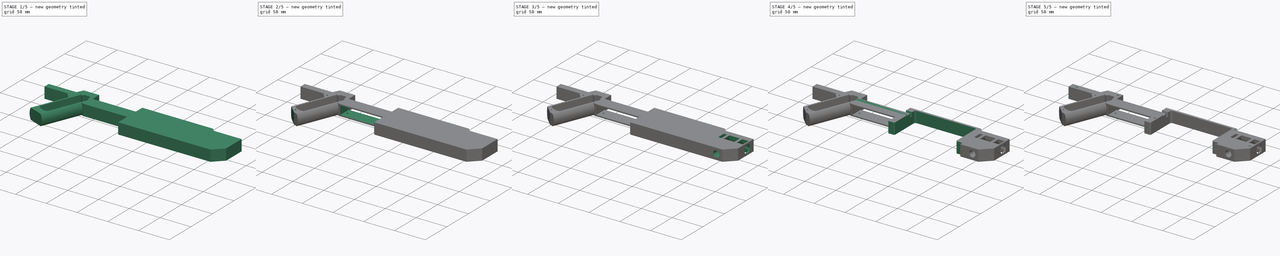
[diagram: build sequence overview — one tinted view per stage of 5, left to right]
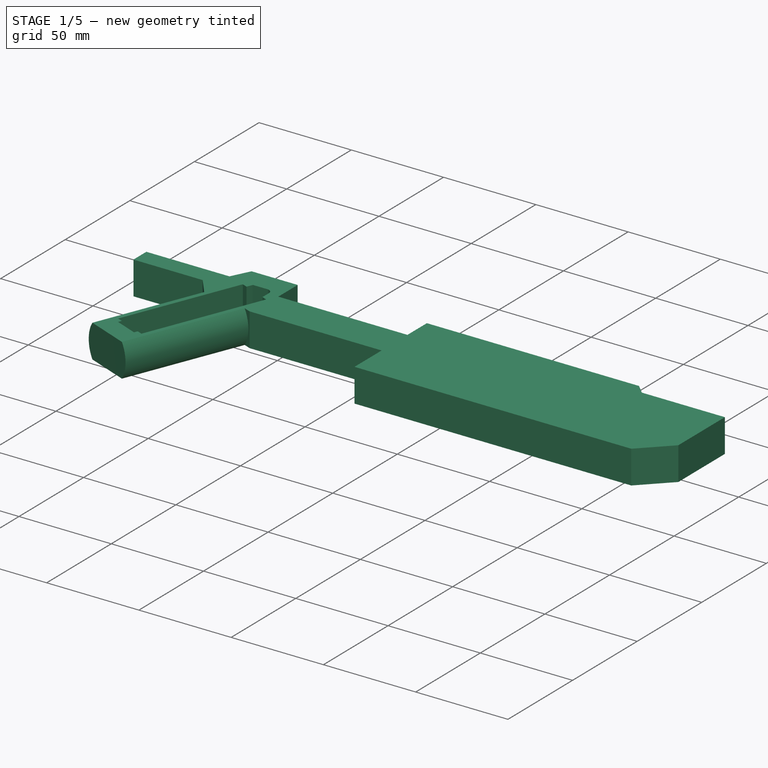
[diagram: stage 1 of 5 — iso view after this stage's code; geometry added in this stage tinted green]
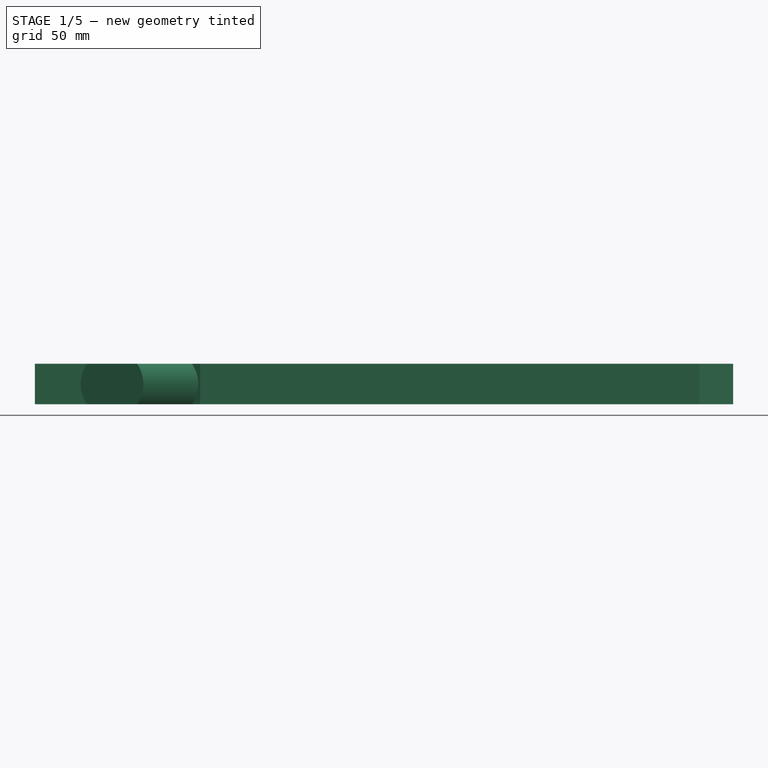
[diagram: stage 1 of 5 — front view after this stage's code; geometry added in this stage tinted green]
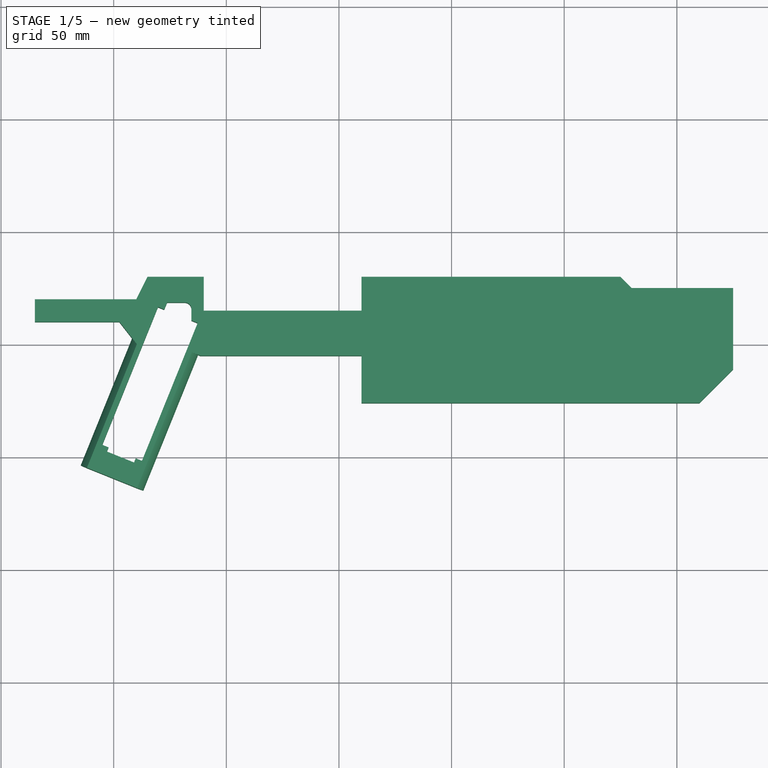
[diagram: stage 1 of 5 — top view after this stage's code; geometry added in this stage tinted green]
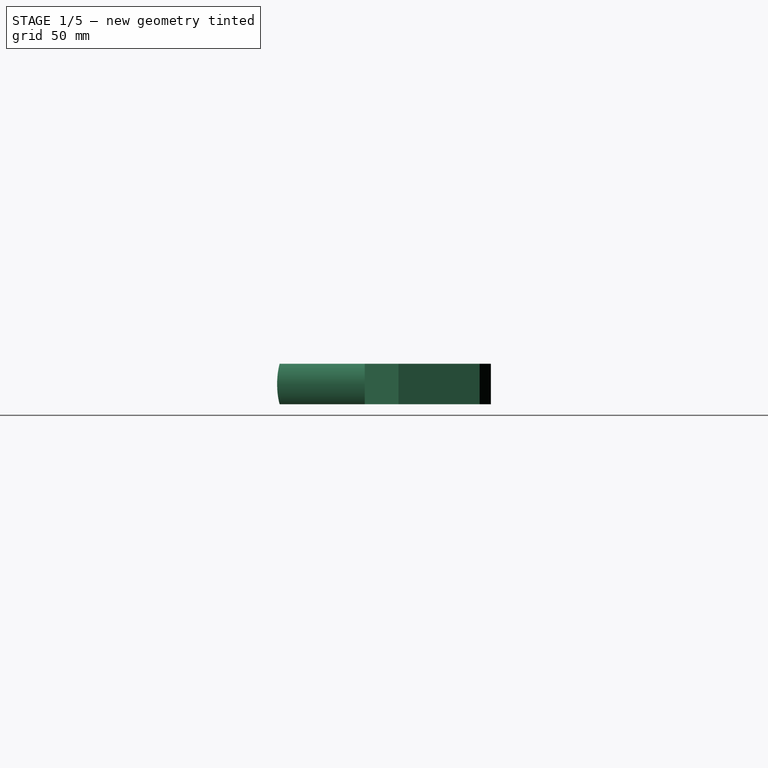
[diagram: stage 1 of 5 — right view after this stage's code; geometry added in this stage tinted green]
FCSTD DOCUMENT  (FreeCAD 1.0R39109 (Git))
Label: FrameUpper.stl
License: All rights reserved
LicenseURL: http://en.wikipedia.org/wiki/All_rights_reserved
objects: Sketcher::SketchObject×20, PartDesign::Pocket×12, App::Link×6, PartDesign::Hole×5, PartDesign::Pad×3, PartDesign::Plane×2, App::Part×2, Image::ImagePlane×1, PartDesign::Body×1
note: 103 computed .brp shape members not serialized (recipe doc carries the construction recipe); baked Part::Feature solids carry a one-line shape summary decoded from their .brp
EXTERNAL_REF file=SizeRequirements.FCStd obj=Part
EXTERNAL_REF file=../ReferenceParts/18650.FCStd obj=Part
EXTERNAL_REF file=../../Reference/Pardini-SP22.FCStd obj=Part
EXTERNAL_REF file=../ReferenceParts/LaserModule12mm.FCStd obj=Part
EXTERNAL_REF file=PrintBedSize.FCStd obj=Part
EXTERNAL_REF file=ElectronicsBay/ElectronicsBayLolin32Lite.stl.FCStd obj=Part001

FEATURE [App::Link] Link  label="Lolin 32 Lite Board v45"
  LinkPlacement = pos=(22,-3,-3) rot=(0,0,1;0rad)
  LinkedObject = -> <external ../../ReferenceParts/Lolin32Lite.FCStd>#Lolin_32_Lite_Board_v45
  Placement = pos=(22,-3,-3) rot=(0,0,1;0rad)
FEATURE [App::Link] Link001  label="SS12F15"
  LinkPlacement = pos=(65,-1,0) rot=(1,0,0;1.5708rad)
  LinkedObject = -> <external ../../ReferenceParts/SS12F15 Switch.FCStd>#SS12F15
  Placement = pos=(65,-1,0) rot=(1,0,0;1.5708rad)
FEATURE [Sketcher::SketchObject] Sketch003
  ArcFitTolerance = 1e-06
  AttachmentOffset = pos=(0,0,60) rot=(0,0,1;0rad)
  AttachmentSupport = -> [YZ_Plane001]
  FullyConstrained = true
  MakeInternals = false
  MapMode = 5
  Placement = pos=(60,0,0) rot=(0.57735,0.57735,0.57735;2.0944rad)
  sketch-geometry (4):
    g0: LineSegment StartX=0 StartY=-7 StartZ=0 EndX=-3 EndY=-7 EndZ=0
    g1: LineSegment StartX=-3 StartY=-7 StartZ=0 EndX=-3 EndY=4 EndZ=0
    g2: LineSegment StartX=-3 StartY=4 StartZ=0 EndX=0 EndY=7 EndZ=0
    g3: LineSegment StartX=0 StartY=7 StartZ=0 EndX=0 EndY=-7 EndZ=0
  constraints (12):
    c: PointOnObject(g0,g-2)
    c: Horizontal(g0)
    c: Coincident(g0,g1)
    c: Vertical(g1)
    c: Coincident(g1,g2)
    c: PointOnObject(g2,g-2)
    c: Coincident(g2,g3)
    c: Coincident(g3,g0)
    c: DistanceY(g0,g-1) = 7
    c: DistanceY(g-1,g2) = 7
    c: Angle(g2,g1) = 0.785398
    c: DistanceX(g0,g-1) = 3
FEATURE [PartDesign::Pocket] Pocket
  BaseFeature = -> Hole
  Direction = (-1,0,0)
  Length = 100
  Length2 = 5
  Midplane = true
  Placement = pos=(0,0,0) rot=(1,0,0;1.5708rad)
  Profile = -> Sketch003
  ReferenceAxis = -> Sketch003 [N_Axis]
  Refine = true
  Suppressed = false
  Type = 0
FEATURE [PartDesign::Body] Body  label="ElectronicsBayBase"
  AllowCompound = false
  Group = -> [Sketch,Pad,Sketch001,Pad001,Sketch002,Hole,Sketch003,Pocket]
  Origin = -> Origin001
  Tip = -> Pocket
FEATURE [App::Part] Part002  label="ElectronicsBayBlank"
  Group = -> [Body]
  Origin = -> Origin003
FEATURE [PartDesign::FeatureBase] Clone
  BaseFeature = -> Body
  Suppressed = false
FEATURE [Sketcher::SketchObject] Sketch004
  ArcFitTolerance = 1e-06
  AttachmentOffset = pos=(0,0,-9) rot=(0,0,1;0rad)
  AttachmentSupport = -> [XY_Plane004]
  FullyConstrained = true
  MakeInternals = false
  MapMode = 5
  Placement = pos=(0,0,-9) rot=(0,0,1;0rad)
  sketch-geometry (10):
    g0: LineSegment StartX=21.9 StartY=47 StartZ=0 EndX=17 EndY=47 EndZ=0
    g1: LineSegment StartX=17 StartY=47 StartZ=0 EndX=17 EndY=-4 EndZ=0
    g2: LineSegment StartX=17 StartY=-4 StartZ=0 EndX=21.9 EndY=-4 EndZ=0
    g3: LineSegment StartX=21.9 StartY=-4 StartZ=0 EndX=21.9 EndY=47 EndZ=0
    g4: LineSegment StartX=48.1 StartY=47 StartZ=0 EndX=48.1 EndY=-4 EndZ=0
    g5: LineSegment StartX=48.1 StartY=-4 StartZ=0 EndX=53 EndY=-4 EndZ=0
    g6: LineSegment StartX=53 StartY=-4 StartZ=0 EndX=53 EndY=47 EndZ=0
    g7: LineSegment StartX=53 StartY=47 StartZ=0 EndX=48.1 EndY=47 EndZ=0
    g8: LineSegment [constr] StartX=21.9 StartY=-4 StartZ=0 EndX=48.1 EndY=-4 EndZ=0
    g9: GeomPoint [constr] X=35 Y=-4 Z=0
  constraints (27):
    c: Coincident(g0,g1)
    c: Coincident(g1,g2)
    c: Coincident(g2,g3)
    c: Coincident(g3,g0)
    c: Horizontal(g0)
    c: Horizontal(g2)
    c: Vertical(g1)
    c: Vertical(g3)
    c: Coincident(g4,g5)
    c: Coincident(g5,g6)
    c: Coincident(g6,g7)
    c: Coincident(g7,g4)
    c: Vertical(g4)
    c: Vertical(g6)
    c: Horizontal(g5)
    c: Horizontal(g7)
    c: Equal(g5,g2)
    c: DistanceY(g-1,g0) = 47
    c: DistanceY(g1,g-1) = 4
    c: Horizontal(g2,g4)
    c: Horizontal(g4,g0)
    c: DistanceX(g0,g6) = 36
    c: Coincident(g8,g2)
    c: Coincident(g8,g4)
    c: Symmetric(g8,g8,g9)
    c: DistanceX(g-1,g9) = 35
    c: DistanceX(g8,g8) = 26.2
FEATURE [PartDesign::Pad] Pad002  label="SideWalls"
  BaseFeature = -> Clone
  Direction = (0,0,1)
  Length = 9
  Length2 = 10
  Profile = -> Sketch004
  ReferenceAxis = -> Sketch004 [N_Axis]
  Refine = true
  Suppressed = false
  Type = 0
FEATURE [PartDesign::Body] Body001  label="ElectronicsBayLolin"
  AllowCompound = false
  Group = -> [Clone,Sketch004,Pad002,Sketch005,Pad003,Sketch006,Sketch007,Pad004,Pocket001,Sketch009,Pad006,Sketch013,Hole002,Sketch014,Pocket002,Sketch015,Pocket003]
  Origin = -> Origin004
  Tip = -> Pocket003
FEATURE [App::Part] Part  label="ElectronicsBay.stl"
  Group = -> [Body001]
  Origin = -> Origin
FEATURE [App::Link] Link005  label="BoardRetainer"
  LinkPlacement = pos=(35,40.75,3.56248e-06) rot=(1,0,0;3.14159rad)
  LinkedObject = -> <external ElectronicsBayLolin32Lite-board-retainer.stl.FCStd>#Part003
  Placement = pos=(35,40.75,3.56248e-06) rot=(1,0,0;3.14159rad)
FEATURE [App::Link] Link006  label="M3x011"
  LinkPlacement = pos=(56,6,2) rot=(0,0,1;0rad)
  LinkedObject = -> Link002
  Placement = pos=(56,6,2) rot=(0,0,1;0rad)
FEATURE [App::Part] Part001  label="EletronicsBayAssembly"
  Group = -> [Link,Part,Link001,Link002,Link003,Link004,Link005,Link006]
  Origin = -> Origin002
---- part PrintBedSize.FCStd = doc fcstd_8e3cb52794e3 ----
FCSTD DOCUMENT  (FreeCAD 1.0R39109 (Git))
Label: PrintBedSize
License: All rights reserved
LicenseURL: http://en.wikipedia.org/wiki/All_rights_reserved
objects: Sketcher::SketchObject×1, PartDesign::Body×1, App::Part×1
note: 3 computed .brp shape members not serialized (recipe doc carries the construction recipe); baked Part::Feature solids carry a one-line shape summary decoded from their .brp

FEATURE [Sketcher::SketchObject] Sketch
  ArcFitTolerance = 1e-06
  AttachmentSupport = -> [XY_Plane]
  FullyConstrained = true
  MakeInternals = false
  MapMode = 5
  sketch-geometry (4):
    g0: LineSegment StartX=-125 StartY=125 StartZ=0 EndX=-125 EndY=-125 EndZ=0
    g1: LineSegment StartX=-125 StartY=-125 StartZ=0 EndX=125 EndY=-125 EndZ=0
    g2: LineSegment StartX=125 StartY=-125 StartZ=0 EndX=125 EndY=125 EndZ=0
    g3: LineSegment StartX=125 StartY=125 StartZ=0 EndX=-125 EndY=125 EndZ=0
  constraints (11):
    c: Coincident(g0,g1)
    c: Coincident(g1,g2)
    c: Coincident(g2,g3)
    c: Coincident(g3,g0)
    c: Vertical(g0)
    c: Vertical(g2)
    c: Horizontal(g1)
    c: Horizontal(g3)
    c: Symmetric(g2,g0,g-1)
    c: DistanceY(g2,g2) = 250
    c: Equal(g2,g3)
FEATURE [PartDesign::Body] Body
  AllowCompound = false
  Group = -> [Sketch]
  Origin = -> Origin
FEATURE [App::Part] Part  label="PrintBedSize"
  Group = -> [Body]
  Origin = -> Origin001
---- part SizeRequirements.FCStd = doc fcstd_d00a57abd4df ----
FCSTD DOCUMENT  (FreeCAD 1.0R39109 (Git))
Label: SizeRequirements
License: All rights reserved
LicenseURL: http://en.wikipedia.org/wiki/All_rights_reserved
objects: Sketcher::SketchObject×2, PartDesign::Pad×2, PartDesign::Body×2, App::Part×1
note: 12 computed .brp shape members not serialized (recipe doc carries the construction recipe); baked Part::Feature solids carry a one-line shape summary decoded from their .brp

FEATURE [Sketcher::SketchObject] Sketch
  ArcFitTolerance = 1e-06
  AttachmentSupport = -> [XY_Plane]
  FullyConstrained = true
  MakeInternals = false
  MapMode = 5
  sketch-geometry (4):
    g0: LineSegment StartX=-210 StartY=100 StartZ=0 EndX=-210 EndY=-100 EndZ=0
    g1: LineSegment StartX=-210 StartY=-100 StartZ=0 EndX=210 EndY=-100 EndZ=0
    g2: LineSegment StartX=210 StartY=-100 StartZ=0 EndX=210 EndY=100 EndZ=0
    g3: LineSegment StartX=210 StartY=100 StartZ=0 EndX=-210 EndY=100 EndZ=0
  constraints (11):
    c: Coincident(g0,g1)
    c: Coincident(g1,g2)
    c: Coincident(g2,g3)
    c: Coincident(g3,g0)
    c: Vertical(g0)
    c: Vertical(g2)
    c: Horizontal(g1)
    c: Horizontal(g3)
    c: Symmetric(g1,g0,g-1)
    c: DistanceX(g3,g3) = 420
    c: Distance(g0,g0) = 200
FEATURE [PartDesign::Pad] Pad
  Direction = (0,0,1)
  Length = 50
  Length2 = 10
  Midplane = true
  Profile = -> Sketch
  ReferenceAxis = -> Sketch [N_Axis]
  Refine = true
  Suppressed = false
  Type = 0
FEATURE [PartDesign::Body] Body  label="Size Requirement Max"
  AllowCompound = false
  Group = -> [Sketch,Pad]
  Origin = -> Origin
  Tip = -> Pad
FEATURE [Sketcher::SketchObject] Sketch001
  ArcFitTolerance = 1e-06
  AttachmentSupport = -> [XY_Plane001]
  FullyConstrained = true
  MakeInternals = false
  MapMode = 5
  sketch-geometry (4):
    g0: LineSegment StartX=-168 StartY=-80 StartZ=0 EndX=168 EndY=-80 EndZ=0
    g1: LineSegment StartX=168 StartY=-80 StartZ=0 EndX=168 EndY=80 EndZ=0
    g2: LineSegment StartX=168 StartY=80 StartZ=0 EndX=-168 EndY=80 EndZ=0
    g3: LineSegment StartX=-168 StartY=80 StartZ=0 EndX=-168 EndY=-80 EndZ=0
  constraints (11):
    c: Coincident(g0,g1)
    c: Coincident(g1,g2)
    c: Coincident(g2,g3)
    c: Coincident(g3,g0)
    c: Horizontal(g0)
    c: Horizontal(g2)
    c: Vertical(g1)
    c: Vertical(g3)
    c: Symmetric(g0,g2,g-1)
    c: DistanceX(g0,g0) = 336
    c: DistanceY(g1,g1) = 160
FEATURE [PartDesign::Pad] Pad001
  Direction = (0,0,1)
  Length = 40
  Length2 = 10
  Midplane = true
  Profile = -> Sketch001
  ReferenceAxis = -> Sketch001 [N_Axis]
  Refine = true
  Suppressed = false
  Type = 0
FEATURE [PartDesign::Body] Body001  label="Size Requirement Min"
  AllowCompound = false
  Group = -> [Sketch001,Pad001]
  Origin = -> Origin001
  Tip = -> Pad001
FEATURE [App::Part] Part  label="SizeRequirements"
  Group = -> [Body001,Body]
  Origin = -> Origin002
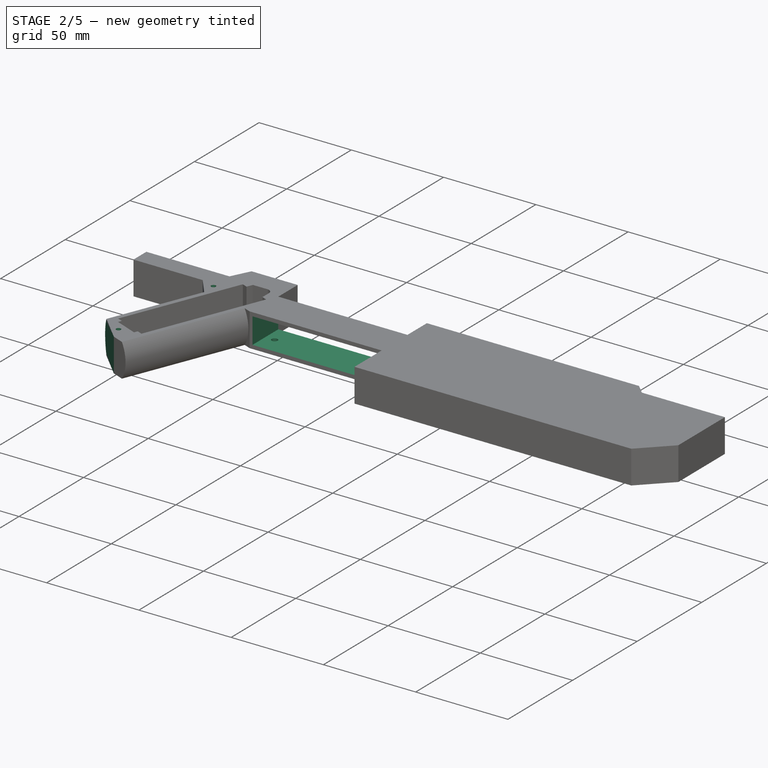
[diagram: stage 2 of 5 — iso view after this stage's code; geometry added in this stage tinted green]
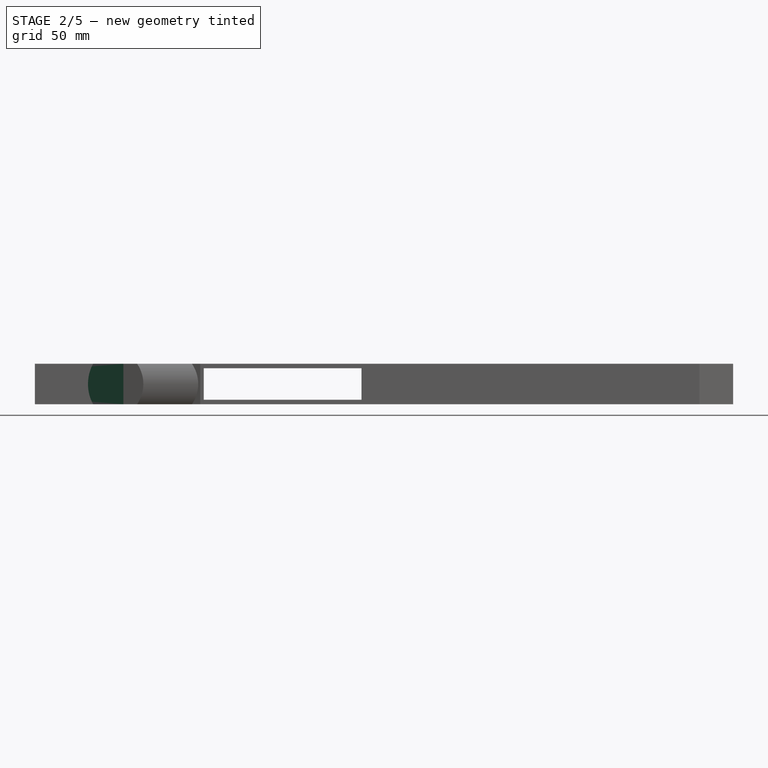
[diagram: stage 2 of 5 — front view after this stage's code; geometry added in this stage tinted green]
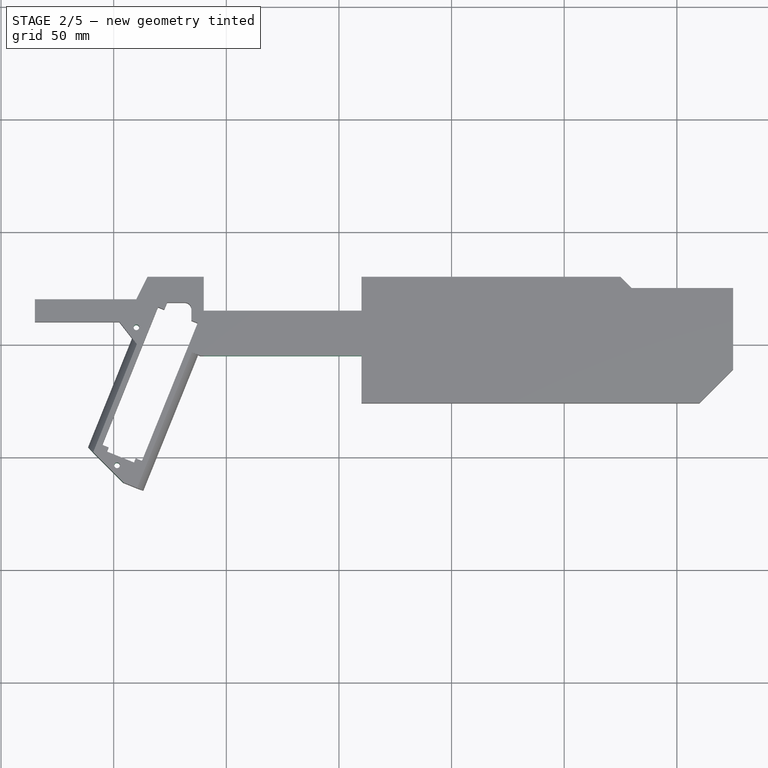
[diagram: stage 2 of 5 — top view after this stage's code; geometry added in this stage tinted green]
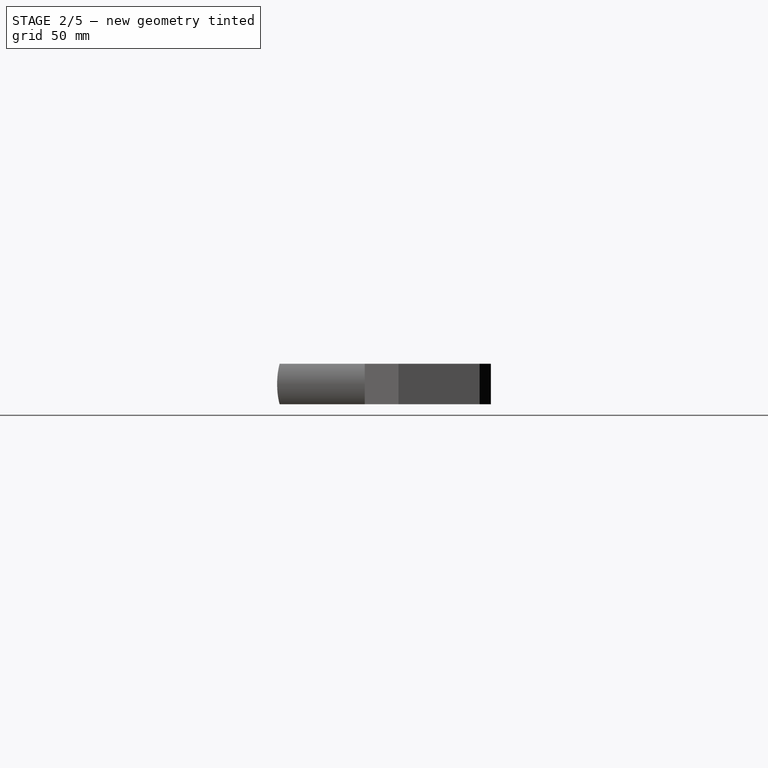
[diagram: stage 2 of 5 — right view after this stage's code; geometry added in this stage tinted green]
FEATURE [App::Link] Link  label="SizeRequirements"
  LinkedObject = -> <external SizeRequirements.FCStd>#Part
FEATURE [App::Link] Link002  label="18650"
  LinkPlacement = pos=(-71.7766,52.6528,0) rot=(0,0,-1;0.383973rad)
  LinkedObject = -> <external ../ReferenceParts/18650.FCStd>#Part
  Placement = pos=(-71.7766,52.6528,0) rot=(0,0,-1;0.383973rad)
FEATURE [Image::ImagePlane] ecoaims_pp320expt  label="ecoaims-pp320expt"
  Placement = pos=(-5.6e-15,16,-29) rot=(0,-1,0;3.14159rad)
  XSize = 400.01
  YSize = 267.61
FEATURE [App::Link] Link003  label="Pardini-SP22"
  LinkPlacement = pos=(-49,5.84125e-06,-3.482e-13) rot=(0.57735,0.57735,0.57735;4.18879rad)
  LinkedObject = -> <external ../../Reference/Pardini-SP22.FCStd>#Part
  Placement = pos=(-49,5.84125e-06,-3.482e-13) rot=(0.57735,0.57735,0.57735;4.18879rad)
FEATURE [App::Link] Link004  label="LaserModule12mm"
  LinkPlacement = pos=(134,50,-1.5974e-05) rot=(0,1,0;1.5708rad)
  LinkedObject = -> <external ../ReferenceParts/LaserModule12mm.FCStd>#Part
  Placement = pos=(134,50,-1.5974e-05) rot=(0,1,0;1.5708rad)
FEATURE [App::Link] Link005  label="PrintBedSize"
  LinkPlacement = pos=(20.3293,39.0677,35) rot=(0,0,-1;0.785398rad)
  LinkedObject = -> <external PrintBedSize.FCStd>#Part
  Placement = pos=(20.3293,39.0677,35) rot=(0,0,-1;0.785398rad)
FEATURE [Sketcher::SketchObject] Sketch
  ArcFitTolerance = 1e-06
  AttachmentSupport = -> [XY_Plane001]
  FullyConstrained = true
  MakeInternals = false
  MapMode = 5
  sketch-geometry (17):
    g0: LineSegment StartX=10 StartY=30 StartZ=0 EndX=10 EndY=15 EndZ=0
    g1: LineSegment StartX=10 StartY=15 StartZ=0 EndX=-60 EndY=15 EndZ=0
    g2: LineSegment StartX=-60 StartY=15 StartZ=0 EndX=-60 EndY=30 EndZ=0
    g3: LineSegment StartX=-60 StartY=30 StartZ=0 EndX=-85 EndY=30 EndZ=0
    g4: LineSegment StartX=-85 StartY=30 StartZ=0 EndX=-90 EndY=20 EndZ=0
    g5: LineSegment StartX=-90 StartY=20 StartZ=0 EndX=-135 EndY=20 EndZ=0
    g6: LineSegment StartX=-135 StartY=20 StartZ=0 EndX=-135 EndY=10 EndZ=0
    g7: LineSegment StartX=-135 StartY=10 StartZ=0 EndX=-60 EndY=10 EndZ=0
    g8: LineSegment StartX=-60 StartY=-5 StartZ=0 EndX=10 EndY=-5 EndZ=0
    g9: LineSegment StartX=125 StartY=30 StartZ=0 EndX=10 EndY=30 EndZ=0
    g10: LineSegment StartX=175 StartY=25 StartZ=0 EndX=130 EndY=25 EndZ=0
    g11: LineSegment StartX=130 StartY=25 StartZ=0 EndX=125 EndY=30 EndZ=0
    g12: LineSegment StartX=160 StartY=-26 StartZ=0 EndX=10 EndY=-26 EndZ=0
    g13: LineSegment StartX=10 StartY=-5 StartZ=0 EndX=10 EndY=-26 EndZ=0
    g14: LineSegment StartX=-60 StartY=-5 StartZ=0 EndX=-60 EndY=10 EndZ=0
    g15: LineSegment StartX=160 StartY=-26 StartZ=0 EndX=175 EndY=-11 EndZ=0
    g16: LineSegment StartX=175 StartY=-11 StartZ=0 EndX=175 EndY=25 EndZ=0
  constraints (51):
    c: Coincident(g0,g1)
    c: Horizontal(g1)
    c: Coincident(g1,g2)
    c: Coincident(g2,g3)
    c: Horizontal(g3)
    c: Coincident(g3,g4)
    c: Coincident(g4,g5)
    c: Horizontal(g5)
    c: Coincident(g5,g6)
    c: Coincident(g6,g7)
    c: Coincident(g9,g0)
    c: Horizontal(g9)
    c: Horizontal(g2,g0)
    c: DistanceX(g4,g3) = 5
    c: DistanceX(g3,g3) = 25
    c: DistanceY(g-1,g1) = 15
    c: DistanceY(g-1,g3) = 30
    c: Coincident(g10,g11)
    c: Coincident(g11,g9)
    c: DistanceY(g11,g11) = 5
    c: DistanceX(g11,g11) = 5
    c: DistanceX(g10,g10) = 45
    c: Horizontal(g10)
    c: DistanceX(g5,g5) = 45
    c: Vertical(g6)
    c: DistanceX(g-1,g10) = 175
    c: Horizontal(g7)
    c: Horizontal(g8)
    c: DistanceY(g8,g-1) = 5
    c: Horizontal(g12)
    c: DistanceY(g12,g-1) = 26
    c: Coincident(g13,g8)
    c: Coincident(g13,g12)
    c: Vertical(g2)
    c: Coincident(g14,g8)
    c: Vertical(g14)
    c: Coincident(g14,g7)
    c: DistanceY(g-1,g6) = 10
    c: DistanceY(g4,g4) = 10
    c: DistanceX(g1,g8) = 70
    c: DistanceX(g1,g-1) = 60
    c: DistanceX(g8,g1) = 0
    c: DistanceX(g1,g1) = 70
    c: Vertical(g0)
    c: Vertical(g13)
    c: Coincident(g15,g12)
    c: Coincident(g16,g15)
    c: Coincident(g16,g10)
    c: Vertical(g16)
    c: Angle(g15,g16) = 0.785398
    c: DistanceX(g12,g15) = 15
FEATURE [PartDesign::Pad] Pad
  Direction = (0,0,1)
  Length = 18
  Length2 = 10
  Midplane = true
  Profile = -> Sketch
  ReferenceAxis = -> Sketch [N_Axis]
  Refine = true
  Suppressed = false
  Type = 0
FEATURE [PartDesign::Plane] DatumPlane  label="HandgripRefBase"
  AttachmentOffset = pos=(0,97,50) rot=(-1,0,0;0.383972rad)
  AttachmentSupport = -> [Z_Axis001]
  Length = 75.4155
  MapMode = 2
  Placement = pos=(-97,-50,0) rot=(0.488067,-0.723589,0.488067;1.88883rad)
  ResizeMode = 0
  Width = 348.389
FEATURE [Sketcher::SketchObject] Sketch001
  ArcFitTolerance = 1e-06
  AttachmentSupport = -> [DatumPlane]
  FullyConstrained = true
  MakeInternals = false
  MapMode = 5
  Placement = pos=(-97,-50,0) rot=(0.488067,-0.723589,0.488067;1.88883rad)
  sketch-geometry (7):
    g0: LineSegment StartX=-9 StartY=12 StartZ=0 EndX=-9 EndY=-12 EndZ=0
    g1: LineSegment StartX=9 StartY=12 StartZ=0 EndX=9 EndY=-12 EndZ=0
    g2: ArcOfCircle CenterX=0 CenterY=4e-16 CenterZ=0 NormalX=0 NormalY=0 NormalZ=1 AngleXU=0 Radius=15 StartAngle=0.927295 EndAngle=2.2143
    g3: ArcOfCircle CenterX=0 CenterY=0 CenterZ=0 NormalX=0 NormalY=0 NormalZ=1 AngleXU=0 Radius=15 StartAngle=4.06889 EndAngle=5.35589
    g4: GeomPoint X=0 Y=15 Z=0
    g5: GeomPoint X=0 Y=-15 Z=0
    g6: Circle [constr] CenterX=0 CenterY=4e-16 CenterZ=0 NormalX=0 NormalY=0 NormalZ=1 AngleXU=0 Radius=15
  constraints (20):
    c: Vertical(g0)
    c: Vertical(g1)
    c: PointOnObject(g2,g-2)
    c: Coincident(g2,g0)
    c: Coincident(g2,g1)
    c: Coincident(g3,g1)
    c: Coincident(g3,g0)
    c: Equal(g3,g2)
    c: Distance(g0,g1) = 18
    c: Horizontal(g0,g1)
    c: PointOnObject(g4,g2)
    c: PointOnObject(g5,g3)
    c: Vertical(g5,g-1)
    c: Vertical(g-1,g4)
    c: DistanceY(g5,g4) = 30
    c: DistanceY(g1,g1) = 24
    c: Coincident(g6,g2)
    c: PointOnObject(g1,g6)
    c: PointOnObject(g0,g6)
    c: Coincident(g3,g-1)
FEATURE [PartDesign::Pad] Pad001  label="HadngripTube"
  BaseFeature = -> Pad
  Direction = (-0.374607,-0.927184,0)
  Length = 70
  Length2 = 10
  Profile = -> Sketch001
  ReferenceAxis = -> Sketch001 [N_Axis]
  Refine = true
  Reversed = true
  Suppressed = false
  Type = 4
FEATURE [PartDesign::Plane] DatumPlane001  label="HandgripRefFlat"
  AttachmentOffset = pos=(0,0,0) rot=(0,1,0;1.5708rad)
  AttachmentSupport = -> [DatumPlane]
  Length = 255.46
  MapMode = 5
  Placement = pos=(-97,-50,0) rot=(0,0,1;1.18682rad)
  ResizeMode = 0
  Width = 374.324
FEATURE [Sketcher::SketchObject] Sketch002
  ArcFitTolerance = 1e-06
  AttachmentSupport = -> [DatumPlane001]
  FullyConstrained = true
  MakeInternals = false
  MapMode = 5
  Placement = pos=(-97,-50,0) rot=(0,0,1;1.18682rad)
  sketch-geometry (14):
    g0: LineSegment StartX=2 StartY=-9.5 StartZ=0 EndX=68 EndY=-9.5 EndZ=0
    g1: LineSegment StartX=68 StartY=9.5 StartZ=0 EndX=2 EndY=9.5 EndZ=0
    g2: LineSegment StartX=2 StartY=9.5 StartZ=0 EndX=2 EndY=6.5 EndZ=0
    g3: LineSegment StartX=2 StartY=6.5 StartZ=0 EndX=0 EndY=6.5 EndZ=0
    g4: LineSegment StartX=0 StartY=6.5 StartZ=0 EndX=0 EndY=-6.5 EndZ=0
    g5: LineSegment StartX=0 StartY=-6.5 StartZ=0 EndX=2 EndY=-6.5 EndZ=0
    g6: LineSegment StartX=2 StartY=-6.5 StartZ=0 EndX=2 EndY=-9.5 EndZ=0
    g7: LineSegment StartX=68 StartY=-9.5 StartZ=0 EndX=68 EndY=-6.5 EndZ=0
    g8: LineSegment StartX=68 StartY=9.5 StartZ=0 EndX=68 EndY=6.5 EndZ=0
    g9: LineSegment StartX=68 StartY=6.5 StartZ=0 EndX=71.3759 EndY=6.5 EndZ=0
    g10: LineSegment StartX=71.3759 StartY=6.5 StartZ=0 EndX=74.2937 EndY=-0.721596 EndZ=0
    g11: LineSegment StartX=72.6359 StartY=-4.62697 StartZ=0 EndX=68 EndY=-6.5 EndZ=0
    g12: ArcOfCircle CenterX=71.5121 CenterY=-1.84542 CenterZ=0 NormalX=0 NormalY=0 NormalZ=1 AngleXU=0 Radius=3 StartAngle=5.09636 EndAngle=6.66716
    g13: GeomPoint [constr] X=75.4175 Y=-3.50315 Z=0
  constraints (39):
    c: Horizontal(g0)
    c: Horizontal(g1)
    c: Distance(g1,g0) = 19
    c: Symmetric(g0,g1,g-1)
    c: DistanceX(g0,g0) = 66
    c: Coincident(g2,g1)
    c: Vertical(g2)
    c: Coincident(g3,g2)
    c: PointOnObject(g3,g-2)
    c: Horizontal(g3)
    c: Coincident(g4,g3)
    c: PointOnObject(g4,g-2)
    c: Coincident(g5,g4)
    c: Coincident(g6,g5)
    c: Coincident(g6,g0)
    c: Horizontal(g5)
    c: Vertical(g6)
    c: Equal(g6,g2)
    c: DistanceY(g2,g2) = 3
    c: DistanceX(g5,g5) = 2
    c: Vertical(g1,g0)
    c: Coincident(g7,g0)
    c: Coincident(g8,g1)
    c: Equal(g2,g8)
    c: Equal(g8,g7)
    c: Vertical(g7)
    c: Vertical(g8)
    c: Coincident(g9,g8)
    c: Horizontal(g9)
    c: Coincident(g10,g9)
    c: Coincident(g11,g7)
    c: Perpendicular(g11,g10)
    c: Distance(g13,g11) = 8
    c: PointOnObject(g13,g10)
    c: PointOnObject(g13,g11)
    c: Tangent(g10,g12) = 1.5708
    c: Tangent(g11,g12) = 1.5708
    c: Radius(g12) = 3
    c: Angle(g-1,g11) = 0.383972
FEATURE [Sketcher::SketchObject] Sketch003
  ArcFitTolerance = 1e-06
  AttachmentSupport = -> [DatumPlane001]
  FullyConstrained = true
  MakeInternals = false
  MapMode = 5
  Placement = pos=(-97,-50,0) rot=(0,0,1;1.18682rad)
  sketch-geometry (6):
    g0: LineSegment StartX=55.4549 StartY=22.9123 StartZ=0 EndX=69.4915 EndY=-11.8294 EndZ=0
    g1: LineSegment StartX=55.5837 StartY=-17.4485 StartZ=0 EndX=55 EndY=-16.0038 EndZ=0
    g2: LineSegment StartX=69.4915 StartY=-11.8294 StartZ=0 EndX=55.5837 EndY=-17.4485 EndZ=0
    g3: LineSegment StartX=55 StartY=-16.0038 StartZ=0 EndX=55 EndY=0 EndZ=0
    g4: LineSegment StartX=55 StartY=0 StartZ=0 EndX=48 EndY=10 EndZ=0
    g5: LineSegment StartX=48 StartY=10 StartZ=0 EndX=55.4549 EndY=22.9123 EndZ=0
  constraints (19):
    c: PointOnObject(g0,g-4)
    c: DistanceX(g-1,g1) = 55
    c: Coincident(g1,g-3)
    c: Coincident(g2,g0)
    c: Coincident(g2,g1)
    c: Perpendicular(g2,g0)
    c: Parallel(g0,g-4)
    c: Parallel(g-3,g1)
    c: DistanceY(g1,g-1) = 16.0038
    c: DistanceY(g-1,g0) = 22.9123
    c: Coincident(g4,g3)
    c: Coincident(g5,g4)
    c: DistanceY(g-1,g4) = 10
    c: PointOnObject(g3,g-1)
    c: Angle(g5,g-1) = 2.0944
    c: DistanceX(g-1,g4) = 48
    c: Coincident(g0,g5)
    c: Coincident(g3,g1)
    c: Vertical(g3)
FEATURE [PartDesign::Pad] Pad002  label="HandgripEndstop"
  BaseFeature = -> Pad001
  Direction = (0,0,1)
  Length = 18
  Length2 = 10
  Midplane = true
  Profile = -> Sketch003
  ReferenceAxis = -> Sketch003 [N_Axis]
  Refine = true
  Suppressed = false
  Type = 0
FEATURE [PartDesign::Pocket] Pocket  label="18650Cutout"
  BaseFeature = -> Pad002
  Direction = (0,0,-1)
  Length = 9
  Length2 = 100
  Midplane = true
  Profile = -> Sketch002
  ReferenceAxis = -> Sketch002 [N_Axis]
  Refine = true
  Suppressed = false
  Type = 1
FEATURE [Sketcher::SketchObject] Sketch004
  ArcFitTolerance = 1e-06
  AttachmentSupport = -> [DatumPlane001]
  FullyConstrained = true
  MakeInternals = false
  MapMode = 5
  Placement = pos=(-97,-50,0) rot=(0,0,1;1.18682rad)
  sketch-geometry (2):
    g0: Circle CenterX=-4 CenterY=0 CenterZ=0 NormalX=0 NormalY=0 NormalZ=1 AngleXU=0 Radius=1.25
    g1: Circle CenterX=56 CenterY=15 CenterZ=0 NormalX=0 NormalY=0 NormalZ=1 AngleXU=0 Radius=1.25
  constraints (6):
    c: PointOnObject(g0,g-1)
    c: Diameter(g0) = 2.5
    c: DistanceX(g0,g-1) = 4
    c: Equal(g1,g0)
    c: DistanceY(g-1,g1) = 15
    c: DistanceX(g0,g1) = 60
FEATURE [Sketcher::SketchObject] Sketch005
  ArcFitTolerance = 1e-06
  AttachmentSupport = -> [XY_Plane001]
  FullyConstrained = true
  MakeInternals = false
  MapMode = 5
  sketch-geometry (3):
    g0: LineSegment StartX=-122 StartY=-35 StartZ=0 EndX=-82 EndY=-75 EndZ=0
    g1: LineSegment StartX=-82 StartY=-75 StartZ=0 EndX=-122 EndY=-75 EndZ=0
    g2: LineSegment StartX=-122 StartY=-75 StartZ=0 EndX=-122 EndY=-35 EndZ=0
  constraints (9):
    c: Coincident(g1,g0)
    c: Horizontal(g1)
    c: Coincident(g2,g1)
    c: Coincident(g2,g0)
    c: Vertical(g2)
    c: Angle(g2,g0) = 0.785398
    c: DistanceX(g0,g-1) = 122
    c: DistanceY(g0,g-1) = 35
    c: DistanceX(g1,g1) = 40
FEATURE [PartDesign::Pocket] Pocket002  label="HandgripPrintbedAdjust"
  BaseFeature = -> Pocket
  Direction = (0,0,-1)
  Length = 5
  Length2 = 5
  Midplane = true
  Profile = -> Sketch005
  ReferenceAxis = -> Sketch005 [N_Axis]
  Refine = true
  Suppressed = false
  Type = 1
FEATURE [PartDesign::Pocket] Pocket003  label="HandgripRetainingScrews"
  BaseFeature = -> Pocket002
  Direction = (0,0,-1)
  Length = 5
  Length2 = 5
  Midplane = true
  Profile = -> Sketch004
  ReferenceAxis = -> Sketch004 [N_Axis]
  Refine = true
  Suppressed = false
  Type = 1
FEATURE [Sketcher::SketchObject] Sketch006
  ArcFitTolerance = 1e-06
  AttachmentOffset = pos=(0,0,-26) rot=(0,0,1;0rad)
  AttachmentSupport = -> [XZ_Plane001]
  FullyConstrained = true
  MakeInternals = false
  MapMode = 5
  Placement = pos=(0,26,-5.8e-15) rot=(1,0,0;1.5708rad)
  sketch-geometry (4):
    g0: LineSegment StartX=-60 StartY=7 StartZ=0 EndX=-60 EndY=-7 EndZ=0
    g1: LineSegment StartX=-60 StartY=-7 StartZ=0 EndX=10 EndY=-7 EndZ=0
    g2: LineSegment StartX=10 StartY=-7 StartZ=0 EndX=10 EndY=7 EndZ=0
    g3: LineSegment StartX=10 StartY=7 StartZ=0 EndX=-60 EndY=7 EndZ=0
  constraints (11):
    c: Coincident(g0,g1)
    c: Coincident(g1,g2)
    c: Coincident(g2,g3)
    c: Coincident(g3,g0)
    c: Vertical(g2)
    c: Horizontal(g1)
    c: Horizontal(g3)
    c: DistanceX(g0,g-1) = 60
    c: Distance(g0,g0) = 14
    c: Symmetric(g0,g0,g-1)
    c: DistanceX(g-1,g1) = 10
FEATURE [PartDesign::Pocket] Pocket004  label="TriggerSlot"
  BaseFeature = -> Pocket003
  Direction = (0,1,-2e-16)
  Length = 5
  Length2 = 5
  Profile = -> Sketch006
  ReferenceAxis = -> Sketch006 [N_Axis]
  Refine = true
  Reversed = true
  Suppressed = false
  Type = 1
FEATURE [Sketcher::SketchObject] Sketch007
  ArcFitTolerance = 1e-06
  AttachmentSupport = -> [XY_Plane001]
  FullyConstrained = true
  MakeInternals = false
  MapMode = 5
  sketch-geometry (2):
    g0: Circle CenterX=-55 CenterY=5 CenterZ=0 NormalX=0 NormalY=0 NormalZ=1 AngleXU=0 Radius=1.6
    g1: Circle CenterX=5 CenterY=5 CenterZ=0 NormalX=0 NormalY=0 NormalZ=1 AngleXU=0 Radius=1.6
  constraints (6):
    c: Equal(g0,g1)
    c: Diameter(g1) = 3.2
    c: DistanceX(g0,g1) = 60
    c: DistanceX(g-1,g1) = 5
    c: DistanceY(g-1,g1) = 5
    c: Horizontal(g1,g0)
FEATURE [PartDesign::Pocket] Pocket005  label="TriggerRetainingScrews"
  BaseFeature = -> Pocket004
  Direction = (0,0,-1)
  Length = 5
  Length2 = 5
  Profile = -> Sketch007
  ReferenceAxis = -> Sketch007 [N_Axis]
  Refine = true
  Suppressed = false
  Type = 1
FEATURE [App::Link] Link003  label="M2x10"
  LinkPlacement = pos=(24.5,44,2) rot=(0,0,1;0rad)
  LinkedObject = -> <external ../../ReferenceParts/M2.FCStd>#Part
  Placement = pos=(24.5,44,2) rot=(0,0,1;0rad)
FEATURE [App::Link] Link004  label="SwitchRetainer"
  LinkPlacement = pos=(65,-1.00001,3.55e-14) rot=(-1,0,0;1.5708rad)
  LinkedObject = -> <external ElectronicsBayLolin32Lite-SwitchRetainer.stl.FCStd>#Part003
  Placement = pos=(65,-1.00001,3.55e-14) rot=(-1,0,0;1.5708rad)
FEATURE [Sketcher::SketchObject] Sketch014
  ArcFitTolerance = 1e-06
  AttachmentSupport = -> [YZ_Plane004]
  FullyConstrained = true
  MakeInternals = false
  MapMode = 5
  Placement = pos=(0,0,0) rot=(0.57735,0.57735,0.57735;2.0944rad)
  sketch-geometry (4):
    g0: LineSegment StartX=50.8 StartY=10 StartZ=0 EndX=40.8 EndY=10 EndZ=0
    g1: LineSegment StartX=40.8 StartY=10 StartZ=0 EndX=40.8 EndY=-3 EndZ=0
    g2: LineSegment StartX=40.8 StartY=-3 StartZ=0 EndX=50.8 EndY=-3 EndZ=0
    g3: LineSegment StartX=50.8 StartY=-3 StartZ=0 EndX=50.8 EndY=10 EndZ=0
  constraints (12):
    c: Coincident(g0,g1)
    c: Coincident(g1,g2)
    c: Coincident(g2,g3)
    c: Coincident(g3,g0)
    c: Horizontal(g0)
    c: Horizontal(g2)
    c: Vertical(g1)
    c: Vertical(g3)
    c: DistanceY(g2,g-1) = 3
    c: DistanceX(g-1,g0) = 40.8
    c: DistanceY(g-1,g0) = 10
    c: DistanceX(g2,g2) = 10
FEATURE [PartDesign::Pocket] Pocket002
  BaseFeature = -> Hole002
  Direction = (-1,0,0)
  Length = 5
  Length2 = 5
  Midplane = true
  Profile = -> Sketch014
  ReferenceAxis = -> Sketch014 [N_Axis]
  Refine = true
  Suppressed = false
  Type = 1
FEATURE [Sketcher::SketchObject] Sketch015
  ArcFitTolerance = 1e-06
  AttachmentSupport = -> [XY_Plane004]
  FullyConstrained = true
  MakeInternals = false
  MapMode = 5
  sketch-geometry (1):
    g0: Circle CenterX=24.5 CenterY=44 CenterZ=0 NormalX=0 NormalY=0 NormalZ=1 AngleXU=0 Radius=1
  constraints (3):
    c: DistanceX(g-1,g0) = 24.5
    c: DistanceY(g-1,g0) = 44
    c: Diameter(g0) = 2
FEATURE [PartDesign::Pocket] Pocket003
  BaseFeature = -> Pocket002
  Direction = (0,0,-1)
  Length = 5
  Length2 = 5
  Midplane = true
  Profile = -> Sketch015
  ReferenceAxis = -> Sketch015 [N_Axis]
  Refine = true
  Suppressed = false
  Type = 1
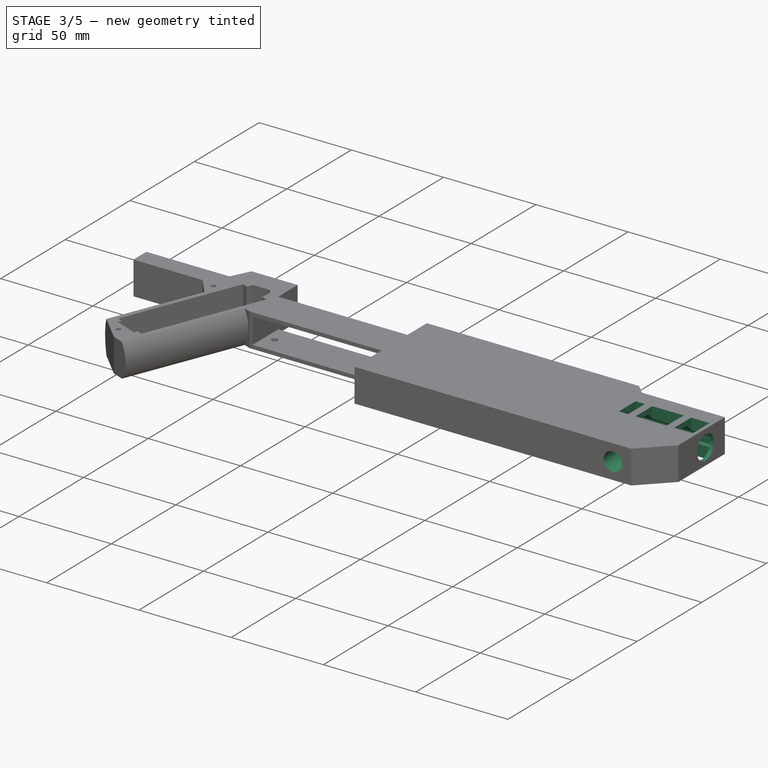
[diagram: stage 3 of 5 — iso view after this stage's code; geometry added in this stage tinted green]
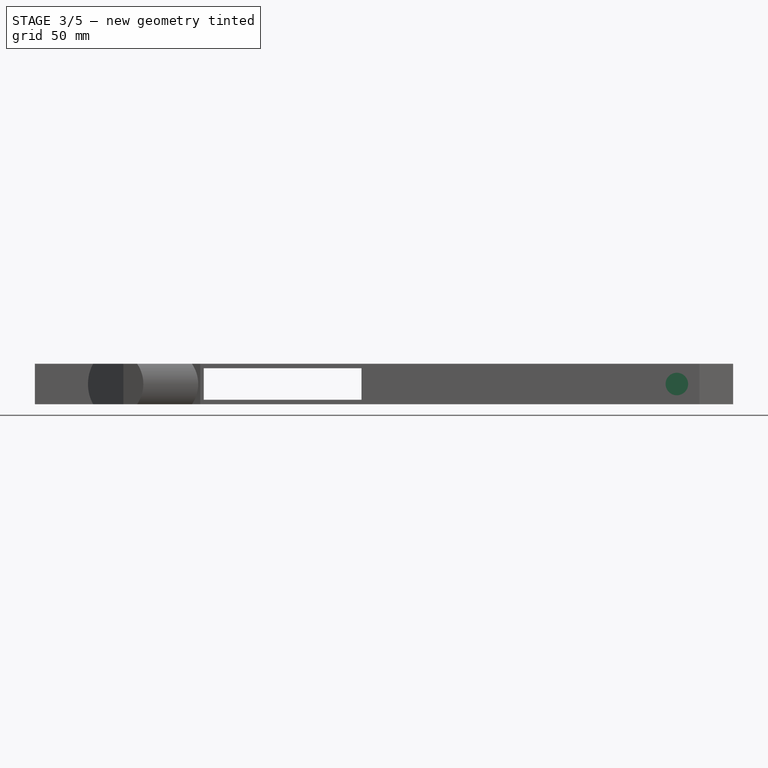
[diagram: stage 3 of 5 — front view after this stage's code; geometry added in this stage tinted green]
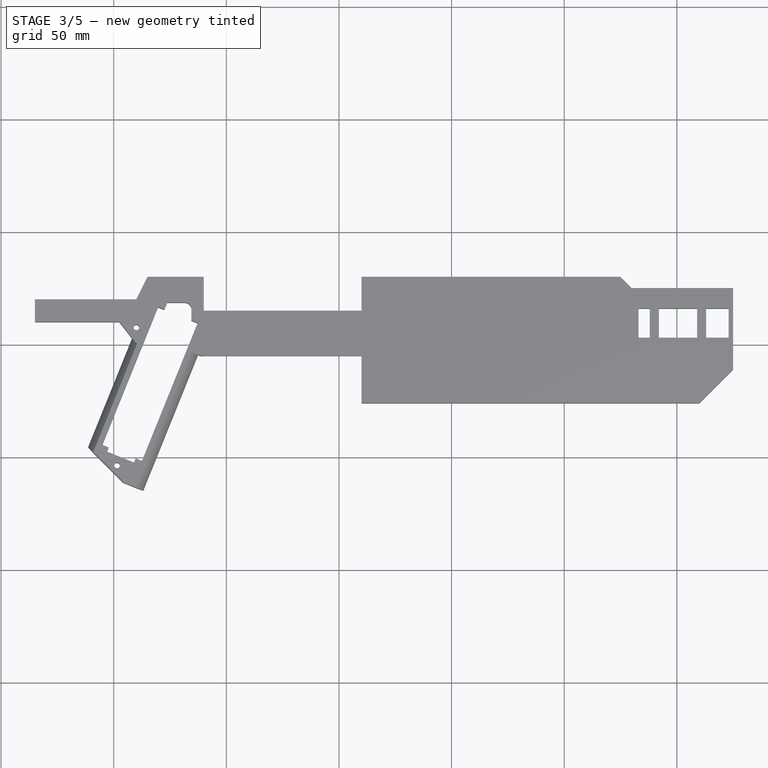
[diagram: stage 3 of 5 — top view after this stage's code; geometry added in this stage tinted green]
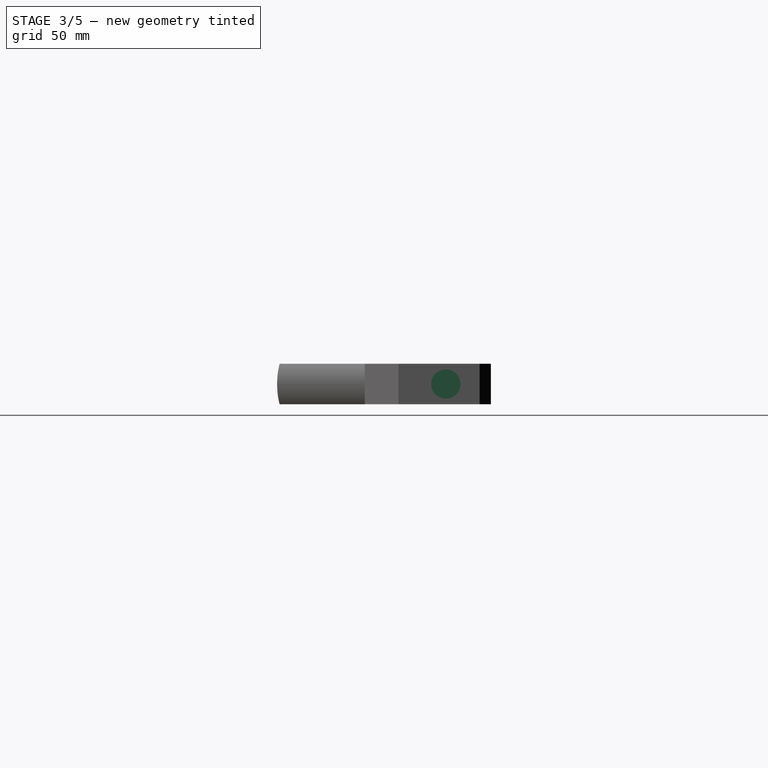
[diagram: stage 3 of 5 — right view after this stage's code; geometry added in this stage tinted green]
FEATURE [Sketcher::SketchObject] Sketch008
  ArcFitTolerance = 1e-06
  AttachmentOffset = pos=(0,0,173) rot=(0,0,1;0rad)
  AttachmentSupport = -> [YZ_Plane001]
  FullyConstrained = true
  MakeInternals = false
  MapMode = 5
  Placement = pos=(173,0,0) rot=(0.57735,0.57735,0.57735;2.0944rad)
  sketch-geometry (7):
    g0: Circle [constr] CenterX=10 CenterY=0 CenterZ=0 NormalX=0 NormalY=0 NormalZ=1 AngleXU=0 Radius=6.25
    g1: LineSegment StartX=12.5888 StartY=-6.25 StartZ=0 EndX=17 EndY=-1.83883 EndZ=0
    g2: LineSegment StartX=17 StartY=-1.83883 StartZ=0 EndX=17 EndY=1.83883 EndZ=0
    g3: LineSegment StartX=17 StartY=1.83883 StartZ=0 EndX=12.5888 EndY=6.25 EndZ=0
    g4: LineSegment StartX=12.5888 StartY=-6.25 StartZ=0 EndX=3.75 EndY=-6.25 EndZ=0
    g5: LineSegment StartX=12.5888 StartY=6.25 StartZ=0 EndX=3.75 EndY=6.25 EndZ=0
    g6: LineSegment StartX=3.75 StartY=6.25 StartZ=0 EndX=3.75 EndY=-6.25 EndZ=0
  constraints (19):
    c: Diameter(g0) = 12.5
    c: PointOnObject(g0,g-1)
    c: DistanceX(g-1,g0) = 10
    c: Coincident(g1,g2)
    c: Coincident(g2,g3)
    c: Angle(g2,g3) = 0.785398
    c: Symmetric(g1,g2,g-1)
    c: Symmetric(g1,g3,g-1)
    c: Tangent(g3,g0)
    c: DistanceX(g0,g1) = 7
    c: Coincident(g4,g1)
    c: Coincident(g5,g3)
    c: Horizontal(g5)
    c: Coincident(g6,g5)
    c: Coincident(g6,g4)
    c: Vertical(g6)
    c: Horizontal(g4)
    c: Tangent(g5,g0)
    c: Tangent(g6,g0)
FEATURE [PartDesign::Pocket] Pocket006  label="LaserCutout"
  BaseFeature = -> Pocket005
  Direction = (-1,0,0)
  Length = 40
  Length2 = 5
  Profile = -> Sketch008
  ReferenceAxis = -> Sketch008 [N_Axis]
  Refine = true
  Suppressed = false
  Type = 0
FEATURE [Sketcher::SketchObject] Sketch009
  ArcFitTolerance = 1e-06
  AttachmentSupport = -> [XY_Plane001]
  FullyConstrained = true
  MakeInternals = false
  MapMode = 5
  sketch-geometry (14):
    g0: LineSegment StartX=133 StartY=16 StartZ=0 EndX=133 EndY=3 EndZ=0
    g1: LineSegment StartX=173 StartY=3 StartZ=0 EndX=173 EndY=16 EndZ=0
    g2: LineSegment StartX=173 StartY=16 StartZ=0 EndX=163 EndY=16 EndZ=0
    g3: LineSegment StartX=163 StartY=16 StartZ=0 EndX=163 EndY=3 EndZ=0
    g4: LineSegment [constr] StartX=163 StartY=3 StartZ=0 EndX=159 EndY=3 EndZ=0
    g5: LineSegment StartX=159 StartY=3 StartZ=0 EndX=159 EndY=16 EndZ=0
    g6: LineSegment StartX=159 StartY=16 StartZ=0 EndX=142 EndY=16 EndZ=0
    g7: LineSegment StartX=142 StartY=16 StartZ=0 EndX=142 EndY=3 EndZ=0
    g8: LineSegment [constr] StartX=142 StartY=3 StartZ=0 EndX=138 EndY=3 EndZ=0
    g9: LineSegment StartX=138 StartY=3 StartZ=0 EndX=138 EndY=16 EndZ=0
    g10: LineSegment StartX=138 StartY=16 StartZ=0 EndX=133 EndY=16 EndZ=0
    g11: LineSegment StartX=133 StartY=3 StartZ=0 EndX=138 EndY=3 EndZ=0
    g12: LineSegment StartX=159 StartY=3 StartZ=0 EndX=142 EndY=3 EndZ=0
    g13: LineSegment StartX=163 StartY=3 StartZ=0 EndX=173 EndY=3 EndZ=0
  constraints (40):
    c: Vertical(g0)
    c: Coincident(g1,g2)
    c: Horizontal(g2)
    c: Coincident(g2,g3)
    c: Vertical(g3)
    c: Coincident(g3,g4)
    c: Coincident(g4,g5)
    c: Vertical(g5)
    c: Coincident(g5,g6)
    c: Horizontal(g6)
    c: Coincident(g6,g7)
    c: Coincident(g7,g8)
    c: Horizontal(g8)
    c: Coincident(g8,g9)
    c: Vertical(g9)
    c: Coincident(g9,g10)
    c: Coincident(g10,g0)
    c: Horizontal(g10)
    c: Horizontal(g5,g2)
    c: Horizontal(g6,g9)
    c: DistanceY(g-1,g1) = 16
    c: Vertical(g1)
    c: DistanceX(g-1,g1) = 173
    c: DistanceY(g-1,g1) = 3
    c: Horizontal(g4)
    c: Equal(g4,g8)
    c: DistanceX(g8,g8) = 4
    c: Horizontal(g7,g4)
    c: DistanceX(g2,g2) = 10
    c: DistanceX(g10,g10) = 5
    c: DistanceX(g0,g1) = 40
    c: Vertical(g7)
    c: Coincident(g11,g0)
    c: Coincident(g11,g8)
    c: Coincident(g12,g4)
    c: Coincident(g12,g7)
    c: Coincident(g13,g3)
    c: Coincident(g13,g1)
    c: Horizontal(g13)
    c: Horizontal(g11)
FEATURE [PartDesign::Pocket] Pocket007  label="LaserCutout2"
  BaseFeature = -> Pocket006
  Direction = (0,0,-1)
  Length = 5
  Length2 = 5
  Midplane = true
  Profile = -> Sketch009
  ReferenceAxis = -> Sketch009 [N_Axis]
  Refine = true
  Suppressed = false
  Type = 1
FEATURE [Sketcher::SketchObject] Sketch010
  ArcFitTolerance = 1e-06
  AttachmentOffset = pos=(0,0,165) rot=(0,0,1;0rad)
  AttachmentSupport = -> [YZ_Plane001]
  FullyConstrained = true
  MakeInternals = false
  MapMode = 5
  Placement = pos=(165,0,0) rot=(0.57735,0.57735,0.57735;2.0944rad)
  sketch-geometry (1):
    g0: Circle CenterX=10 CenterY=0 CenterZ=0 NormalX=0 NormalY=0 NormalZ=1 AngleXU=0 Radius=6.5
  constraints (3):
    c: PointOnObject(g0,g-1)
    c: Diameter(g0) = 13
    c: DistanceX(g-1,g0) = 10
FEATURE [PartDesign::Pocket] Pocket008  label="LaserEmitterHole"
  BaseFeature = -> Pocket007
  Direction = (-1,0,0)
  Length = 5
  Length2 = 5
  Profile = -> Sketch010
  ReferenceAxis = -> Sketch010 [N_Axis]
  Refine = true
  Reversed = true
  Suppressed = false
  Type = 1
FEATURE [PartDesign::Body] Body  label="FrameUpper"
  AllowCompound = false
  Group = -> [Sketch,Pad,DatumPlane,Sketch001,Pad001,DatumPlane001,Sketch002,Sketch003,Pad002,Pocket,Sketch004,Sketch005,Pocket002,Pocket003,Sketch006,Pocket004,Sketch007,Pocket005,Sketch008,Pocket006,Sketch009,Pocket007,Sketch010,Pocket008,Sketch011,Hole,Sketch012,Pocket009,Sketch013,Pocket010,Sketch014,Pocket011,Sketch015,Sketch020,Pocket013,Hole001,Sketch016,Hole002,Sketch018,Hole003,Sketch021,Hole004]
  Origin = -> Origin001
  Tip = -> Hole004
FEATURE [App::Part] Part  label="FrameUpper.stl"
  Group = -> [Body]
  Origin = -> Origin
  Placement = pos=(0,40,0) rot=(0,0,1;0rad)
FEATURE [App::Link] Link006  label="EletronicsBayAssembly"
  LinkPlacement = pos=(10,19,0) rot=(0,0,1;0rad)
  LinkedObject = -> <external ElectronicsBay/ElectronicsBayLolin32Lite.stl.FCStd>#Part001
  Placement = pos=(10,19,0) rot=(0,0,1;0rad)
FEATURE [App::Part] Part002  label="FrameUpperAssembly"
  Group = -> [Part,Link004,Link002,Link006]
  Origin = -> Origin003

RESOLVED EXTERNAL PARTS (link-assembly join: the EXTERNAL_REF files above that resolve inside this repo's crawl, each included once):
---- part ../ReferenceParts/18650.FCStd = doc fcstd_2cb8af9a97c3 ----
FCSTD DOCUMENT  (FreeCAD 1.0R39109 (Git))
Label: 18650
License: All rights reserved
LicenseURL: http://en.wikipedia.org/wiki/All_rights_reserved
objects: Sketcher::SketchObject×1, PartDesign::Pad×1, PartDesign::Body×1, App::Part×1
note: 6 computed .brp shape members not serialized (recipe doc carries the construction recipe); baked Part::Feature solids carry a one-line shape summary decoded from their .brp

FEATURE [Sketcher::SketchObject] Sketch
  ArcFitTolerance = 1e-06
  AttachmentSupport = -> [XZ_Plane001]
  FullyConstrained = true
  MakeInternals = false
  MapMode = 5
  Placement = pos=(0,0,0) rot=(1,0,0;1.5708rad)
  sketch-geometry (1):
    g0: Circle CenterX=0 CenterY=0 CenterZ=0 NormalX=0 NormalY=0 NormalZ=1 AngleXU=0 Radius=9
  constraints (2):
    c: Coincident(g0,g-1)
    c: Diameter(g0) = 18
FEATURE [PartDesign::Pad] Pad
  Direction = (0,-1,2e-16)
  Length = 65
  Length2 = 10
  Placement = pos=(0,0,0) rot=(1,0,0;1.5708rad)
  Profile = -> Sketch
  ReferenceAxis = -> Sketch [N_Axis]
  Refine = true
  Suppressed = false
  Type = 0
FEATURE [PartDesign::Body] Body  label="18650001"
  AllowCompound = false
  Group = -> [Sketch,Pad]
  Origin = -> Origin001
  Tip = -> Pad
FEATURE [App::Part] Part  label="18650"
  Group = -> [Body]
  Origin = -> Origin
---- part ../ReferenceParts/LaserModule12mm.FCStd = doc fcstd_93cae21012da ----
FCSTD DOCUMENT  (FreeCAD 1.0R39109 (Git))
Label: LaserModule12mm
License: All rights reserved
LicenseURL: http://en.wikipedia.org/wiki/All_rights_reserved
objects: Sketcher::SketchObject×2, PartDesign::Pad×2, PartDesign::Body×1, App::Part×1
note: 11 computed .brp shape members not serialized (recipe doc carries the construction recipe); baked Part::Feature solids carry a one-line shape summary decoded from their .brp

FEATURE [Sketcher::SketchObject] Sketch
  ArcFitTolerance = 1e-06
  AttachmentSupport = -> [XY_Plane001]
  FullyConstrained = true
  MakeInternals = false
  MapMode = 5
  sketch-geometry (1):
    g0: Circle CenterX=0 CenterY=0 CenterZ=0 NormalX=0 NormalY=0 NormalZ=1 AngleXU=0 Radius=6.1
  constraints (2):
    c: Coincident(g0,g-1)
    c: Diameter(g0) = 12.2
FEATURE [PartDesign::Pad] Pad  label="Tube"
  Direction = (0,0,1)
  Length = 38
  Length2 = 10
  Profile = -> Sketch
  ReferenceAxis = -> Sketch [N_Axis]
  Refine = true
  Suppressed = false
  Type = 0
FEATURE [Sketcher::SketchObject] Sketch001
  ArcFitTolerance = 1e-06
  AttachmentSupport = -> [XY_Plane001]
  FullyConstrained = true
  MakeInternals = false
  MapMode = 5
  sketch-geometry (1):
    g0: Circle CenterX=0 CenterY=0 CenterZ=0 NormalX=0 NormalY=0 NormalZ=1 AngleXU=0 Radius=2.5
  constraints (2):
    c: Coincident(g0,g-1)
    c: Diameter(g0) = 5
FEATURE [PartDesign::Pad] Pad001  label="Wires"
  BaseFeature = -> Pad
  Direction = (0,0,1)
  Length = 5
  Length2 = 10
  Profile = -> Sketch001
  ReferenceAxis = -> Sketch001 [N_Axis]
  Refine = true
  Reversed = true
  Suppressed = false
  Type = 0
FEATURE [PartDesign::Body] Body
  AllowCompound = false
  Group = -> [Sketch,Pad,Sketch001,Pad001]
  Origin = -> Origin001
  Tip = -> Pad001
FEATURE [App::Part] Part  label="LaserModule12mm"
  Group = -> [Body]
  Origin = -> Origin
---- part ElectronicsBay/ElectronicsBayLolin32Lite.stl.FCStd = doc fcstd_42ca1862f4b7 ----
FCSTD DOCUMENT  (FreeCAD 1.0R39109 (Git))
Label: ElectronicsBayLolin32Lite.stl
License: All rights reserved
LicenseURL: http://en.wikipedia.org/wiki/All_rights_reserved
objects: Sketcher::SketchObject×12, App::Link×7, PartDesign::Pad×6, PartDesign::Pocket×4, App::Part×3, PartDesign::Hole×2, PartDesign::Body×2, PartDesign::FeatureBase×1
note: 64 computed .brp shape members not serialized (recipe doc carries the construction recipe); baked Part::Feature solids carry a one-line shape summary decoded from their .brp
EXTERNAL_REF file=../../ReferenceParts/Lolin32Lite.FCStd obj=Lolin_32_Lite_Board_v45
EXTERNAL_REF file=../../ReferenceParts/SS12F15 Switch.FCStd obj=SS12F15
EXTERNAL_REF file=../../ReferenceParts/M3.FCStd obj=Part
EXTERNAL_REF file=../../ReferenceParts/M2.FCStd obj=Part
EXTERNAL_REF file=ElectronicsBayLolin32Lite-SwitchRetainer.stl.FCStd obj=Part003
EXTERNAL_REF file=ElectronicsBayLolin32Lite-board-retainer.stl.FCStd obj=Part003

FEATURE [Sketcher::SketchObject] Sketch
  ArcFitTolerance = 1e-06
  AttachmentSupport = -> [XZ_Plane001]
  FullyConstrained = true
  MakeInternals = false
  MapMode = 5
  Placement = pos=(0,0,0) rot=(1,0,0;1.5708rad)
  sketch-geometry (4):
    g0: LineSegment StartX=0 StartY=9 StartZ=0 EndX=0 EndY=-9 EndZ=0
    g1: LineSegment StartX=0 StartY=-9 StartZ=0 EndX=120 EndY=-9 EndZ=0
    g2: LineSegment StartX=120 StartY=-9 StartZ=0 EndX=120 EndY=9 EndZ=0
    g3: LineSegment StartX=120 StartY=9 StartZ=0 EndX=0 EndY=9 EndZ=0
  constraints (11):
    c: Coincident(g0,g1)
    c: Coincident(g1,g2)
    c: Coincident(g2,g3)
    c: Coincident(g3,g0)
    c: Vertical(g2)
    c: Horizontal(g1)
    c: Horizontal(g3)
    c: PointOnObject(g0,g-2)
    c: DistanceX(g3,g3) = 120
    c: DistanceY(g0,g0) = 18
    c: Symmetric(g0,g0,g-1)
FEATURE [PartDesign::Pad] Pad  label="Panel"
  Direction = (0,-1,2e-16)
  Length = 5
  Length2 = 10
  Placement = pos=(0,0,0) rot=(1,0,0;1.5708rad)
  Profile = -> Sketch
  ReferenceAxis = -> Sketch [N_Axis]
  Refine = true
  Suppressed = false
  Type = 0
FEATURE [Sketcher::SketchObject] Sketch001
  ArcFitTolerance = 1e-06
  AttachmentOffset = pos=(0,0,-9) rot=(0,0,1;0rad)
  AttachmentSupport = -> [XY_Plane001]
  FullyConstrained = true
  MakeInternals = false
  MapMode = 5
  Placement = pos=(0,0,-9) rot=(0,0,1;0rad)
  sketch-geometry (8):
    g0: LineSegment StartX=11 StartY=0 StartZ=0 EndX=109 EndY=0 EndZ=0
    g1: LineSegment StartX=109 StartY=0 StartZ=0 EndX=109 EndY=42 EndZ=0
    g2: LineSegment StartX=104 StartY=47 StartZ=0 EndX=16 EndY=47 EndZ=0
    g3: LineSegment StartX=11 StartY=42 StartZ=0 EndX=11 EndY=0 EndZ=0
    g4: ArcOfCircle CenterX=16 CenterY=42 CenterZ=0 NormalX=0 NormalY=0 NormalZ=1 AngleXU=0 Radius=5 StartAngle=1.5708 EndAngle=3.14159
    g5: GeomPoint [constr] X=11 Y=47 Z=0
    g6: ArcOfCircle CenterX=104 CenterY=42 CenterZ=0 NormalX=0 NormalY=0 NormalZ=1 AngleXU=0 Radius=5 StartAngle=7e-16 EndAngle=1.5708
    g7: GeomPoint [constr] X=109 Y=47 Z=0
  constraints (20):
    c: Coincident(g0,g1)
    c: Coincident(g3,g0)
    c: Horizontal(g0)
    c: Horizontal(g2)
    c: Vertical(g1)
    c: Vertical(g3)
    c: PointOnObject(g0,g-1)
    c: DistanceX(g-1,g5) = 11
    c: DistanceX(g5,g7) = 98
    c: DistanceY(g-1,g5) = 47
    c: PointOnObject(g5,g2)
    c: PointOnObject(g5,g3)
    c: Tangent(g2,g4) = -1.5708
    c: Tangent(g3,g4) = -1.5708
    c: PointOnObject(g7,g1)
    c: PointOnObject(g7,g2)
    c: Tangent(g1,g6) = -1.5708
    c: Tangent(g2,g6) = -1.5708
    c: Equal(g6,g4)
    c: Radius(g6) = 5
FEATURE [PartDesign::Pad] Pad001  label="Base"
  BaseFeature = -> Pad
  Direction = (0,0,1)
  Length = 2
  Length2 = 10
  Placement = pos=(0,0,0) rot=(1,0,0;1.5708rad)
  Profile = -> Sketch001
  ReferenceAxis = -> Sketch001 [N_Axis]
  Refine = true
  Suppressed = false
  Type = 0
FEATURE [Sketcher::SketchObject] Sketch002
  ArcFitTolerance = 1e-06
  AttachmentOffset = pos=(0,0,10) rot=(0,0,1;0rad)
  AttachmentSupport = -> [XZ_Plane001]
  FullyConstrained = true
  MakeInternals = false
  MapMode = 5
  Placement = pos=(0,-10,2.2e-15) rot=(1,0,0;1.5708rad)
  sketch-geometry (2):
    g0: Circle CenterX=5 CenterY=0 CenterZ=0 NormalX=0 NormalY=0 NormalZ=1 AngleXU=0 Radius=1.5
    g1: Circle CenterX=115 CenterY=0 CenterZ=0 NormalX=0 NormalY=0 NormalZ=1 AngleXU=0 Radius=1.5
  constraints (6):
    c: Horizontal(g1,g0)
    c: Equal(g0,g1)
    c: Diameter(g1) = 3
    c: DistanceX(g0,g1) = 110
    c: DistanceX(g-1,g0) = 5
    c: PointOnObject(g0,g-1)
FEATURE [PartDesign::Hole] Hole
  BaseFeature = -> Pad001
  CustomThreadClearance = 0
  Depth = 25
  DepthType = 0
  Diameter = 3.4
  DrillForDepth = false
  DrillPoint = 1
  DrillPointAngle = 118
  HoleCutCountersinkAngle = 90
  HoleCutCustomValues = false
  HoleCutDepth = 8.5
  HoleCutDiameter = 7
  HoleCutType = 1
  ModelThread = false
  Placement = pos=(0,0,0) rot=(1,0,0;1.5708rad)
  Profile = -> Sketch002
  Refine = true
  Suppressed = false
  Tapered = false
  TaperedAngle = 90
  ThreadClass = 0
  ThreadDepth = 25
  ThreadDepthType = 0
  ThreadDirection = 0
  ThreadFit = 0
  ThreadSize = 9
  ThreadType = 1
  Threaded = false
  UseCustomThreadClearance = false
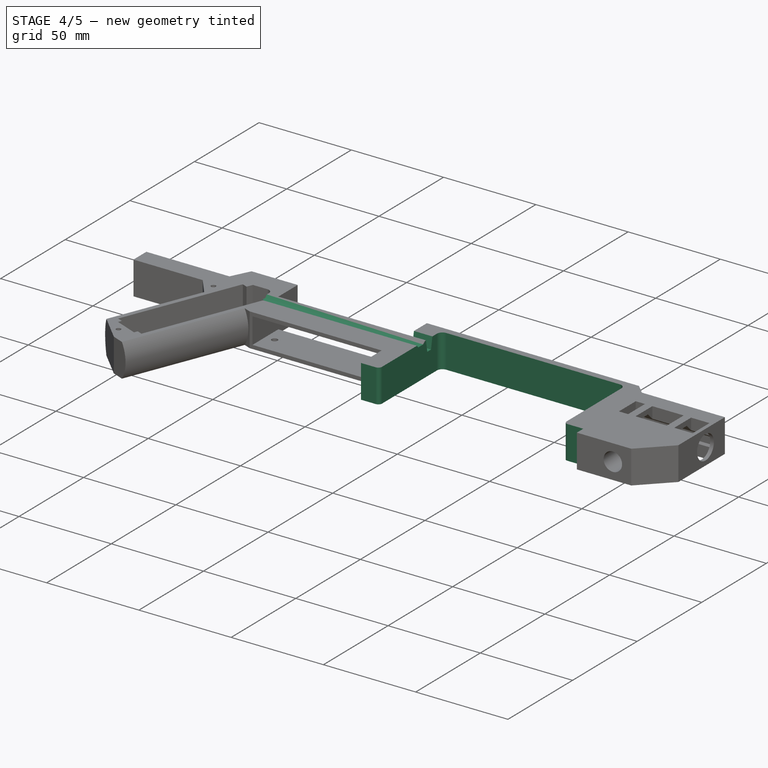
[diagram: stage 4 of 5 — iso view after this stage's code; geometry added in this stage tinted green]
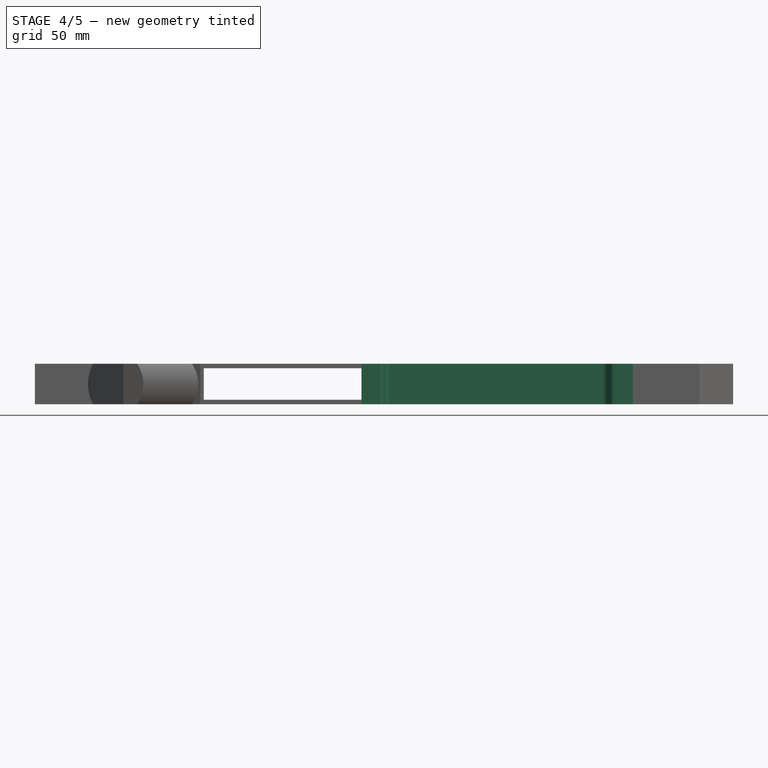
[diagram: stage 4 of 5 — front view after this stage's code; geometry added in this stage tinted green]
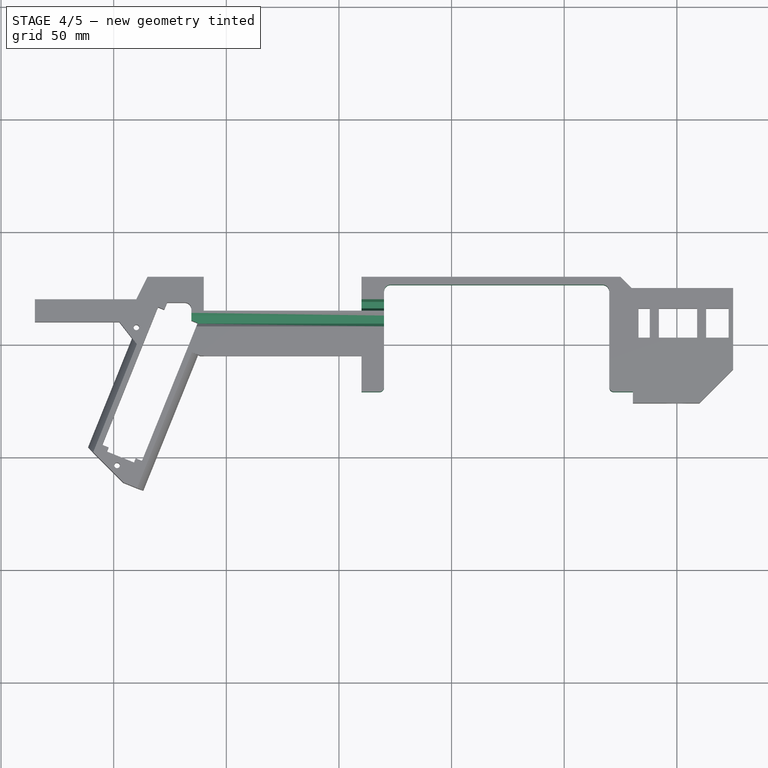
[diagram: stage 4 of 5 — top view after this stage's code; geometry added in this stage tinted green]
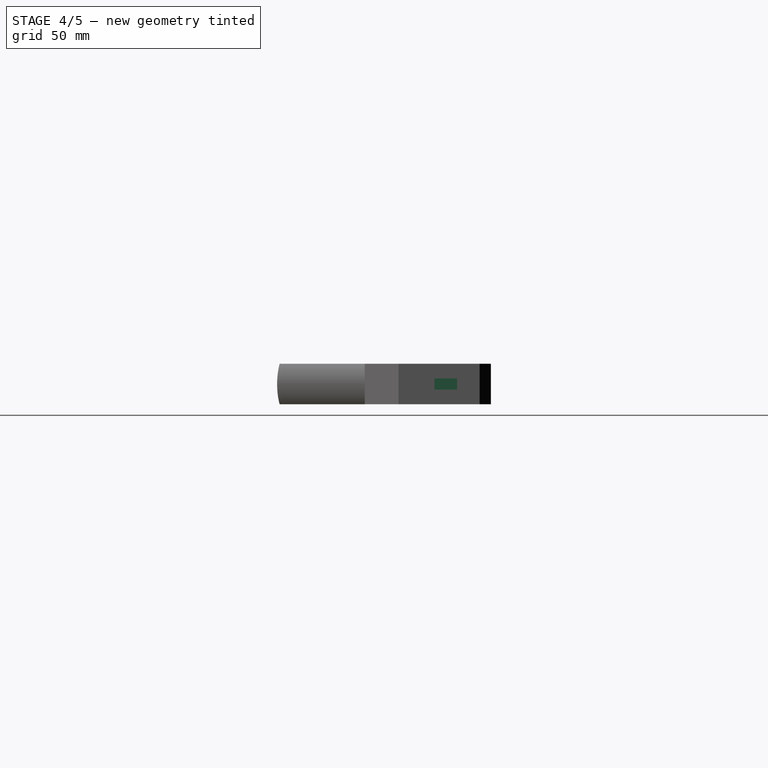
[diagram: stage 4 of 5 — right view after this stage's code; geometry added in this stage tinted green]
FEATURE [Sketcher::SketchObject] Sketch011
  ArcFitTolerance = 1e-06
  AttachmentOffset = pos=(0,0,45) rot=(0,0,1;0rad)
  AttachmentSupport = -> [XZ_Plane001]
  FullyConstrained = true
  MakeInternals = false
  MapMode = 5
  Placement = pos=(0,-45,1e-14) rot=(1,0,0;1.5708rad)
  sketch-geometry (1):
    g0: Circle CenterX=150 CenterY=0 CenterZ=0 NormalX=0 NormalY=0 NormalZ=1 AngleXU=0 Radius=1.5
  constraints (3):
    c: PointOnObject(g0,g-1)
    c: Diameter(g0) = 3
    c: DistanceX(g-1,g0) = 150
FEATURE [PartDesign::Hole] Hole  label="LaserRetainingScrew"
  BaseFeature = -> Pocket008
  CustomThreadClearance = 0
  Depth = 55
  DepthType = 0
  Diameter = 2.5
  DrillForDepth = false
  DrillPoint = 1
  DrillPointAngle = 118
  HoleCutCountersinkAngle = 90
  HoleCutCustomValues = false
  HoleCutDepth = 43
  HoleCutDiameter = 10
  HoleCutType = 1
  ModelThread = false
  Profile = -> Sketch011
  Refine = true
  Suppressed = false
  Tapered = false
  TaperedAngle = 90
  ThreadClass = 0
  ThreadDepth = 55
  ThreadDepthType = 0
  ThreadDirection = 0
  ThreadFit = 0
  ThreadSize = 0
  ThreadType = 0
  Threaded = false
  UseCustomThreadClearance = false
FEATURE [Sketcher::SketchObject] Sketch012
  ArcFitTolerance = 1e-06
  AttachmentOffset = pos=(0,0,135) rot=(0,0,1;0rad)
  AttachmentSupport = -> [YZ_Plane001]
  FullyConstrained = true
  MakeInternals = false
  MapMode = 5
  Placement = pos=(135,0,0) rot=(0.57735,0.57735,0.57735;2.0944rad)
  sketch-geometry (6):
    g0: LineSegment StartX=5 StartY=2.5 StartZ=0 EndX=5 EndY=-2.5 EndZ=0
    g1: LineSegment StartX=5 StartY=-2.5 StartZ=0 EndX=15 EndY=-2.5 EndZ=0
    g2: LineSegment StartX=15 StartY=-2.5 StartZ=0 EndX=15 EndY=2.5 EndZ=0
    g3: LineSegment StartX=15 StartY=2.5 StartZ=0 EndX=5 EndY=2.5 EndZ=0
    g4: GeomPoint X=10 Y=2.5 Z=0
    g5: GeomPoint X=15 Y=0 Z=0
  constraints (14):
    c: Coincident(g0,g1)
    c: Coincident(g1,g2)
    c: Coincident(g2,g3)
    c: Coincident(g3,g0)
    c: Vertical(g0)
    c: Vertical(g2)
    c: Horizontal(g1)
    c: Horizontal(g3)
    c: DistanceX(g3,g3) = 10
    c: Distance(g0,g0) = 5
    c: Symmetric(g3,g3,g4)
    c: DistanceX(g-1,g4) = 10
    c: Symmetric(g2,g2,g5)
    c: PointOnObject(g5,g-1)
FEATURE [PartDesign::Pocket] Pocket009  label="LaserWireRoute"
  BaseFeature = -> Hole
  Direction = (-1,0,0)
  Length = 30
  Length2 = 5
  Profile = -> Sketch012
  ReferenceAxis = -> Sketch012 [N_Axis]
  Refine = true
  Suppressed = false
  Type = 0
FEATURE [Sketcher::SketchObject] Sketch013
  ArcFitTolerance = 1e-06
  AttachmentSupport = -> [XY_Plane001]
  FullyConstrained = true
  MakeInternals = false
  MapMode = 5
  sketch-geometry (16):
    g0: LineSegment StartX=20 StartY=23.5 StartZ=0 EndX=20 EndY=-19 EndZ=0
    g1: LineSegment StartX=120 StartY=-19 StartZ=0 EndX=120 EndY=23.5 EndZ=0
    g2: LineSegment StartX=117 StartY=26.5 StartZ=0 EndX=23 EndY=26.5 EndZ=0
    g3: ArcOfCircle CenterX=23 CenterY=23.5 CenterZ=0 NormalX=0 NormalY=0 NormalZ=1 AngleXU=0 Radius=3 StartAngle=1.5708 EndAngle=3.14159
    g4: GeomPoint [constr] X=20 Y=26.5 Z=0
    g5: ArcOfCircle CenterX=117 CenterY=23.5 CenterZ=0 NormalX=0 NormalY=0 NormalZ=1 AngleXU=0 Radius=3 StartAngle=0 EndAngle=1.5708
    g6: GeomPoint [constr] X=120 Y=26.5 Z=0
    g7: LineSegment StartX=18 StartY=-21 StartZ=0 EndX=10 EndY=-21 EndZ=0
    g8: LineSegment StartX=10 StartY=-21 StartZ=0 EndX=10 EndY=-26 EndZ=0
    g9: LineSegment StartX=10 StartY=-26 StartZ=0 EndX=130.5 EndY=-26 EndZ=0
    g10: LineSegment StartX=130.5 StartY=-26 StartZ=0 EndX=130.5 EndY=-21 EndZ=0
    g11: LineSegment StartX=130.5 StartY=-21 StartZ=0 EndX=122 EndY=-21 EndZ=0
    g12: ArcOfCircle CenterX=18 CenterY=-19 CenterZ=0 NormalX=0 NormalY=0 NormalZ=1 AngleXU=0 Radius=2 StartAngle=4.71239 EndAngle=6.28319
    g13: GeomPoint [constr] X=20 Y=-21 Z=0
    g14: ArcOfCircle CenterX=122 CenterY=-19 CenterZ=0 NormalX=0 NormalY=0 NormalZ=1 AngleXU=0 Radius=2 StartAngle=3.14159 EndAngle=4.71239
    g15: GeomPoint [constr] X=120 Y=-21 Z=0
  constraints (42):
    c: Vertical(g0)
    c: Vertical(g1)
    c: Horizontal(g2)
    c: PointOnObject(g4,g0)
    c: PointOnObject(g4,g2)
    c: Tangent(g0,g3) = -1.5708
    c: Tangent(g2,g3) = -1.5708
    c: PointOnObject(g6,g1)
    c: PointOnObject(g6,g2)
    c: Tangent(g1,g5) = -1.5708
    c: Tangent(g2,g5) = -1.5708
    c: Equal(g3,g5)
    c: Radius(g5) = 3
    c: DistanceY(g-1,g2) = 26.5
    c: DistanceX(g-1,g13) = 20
    c: DistanceX(g0,g1) = 100
    c: Horizontal(g7)
    c: Coincident(g8,g7)
    c: Coincident(g9,g8)
    c: Horizontal(g9)
    c: Coincident(g10,g9)
    c: Vertical(g10)
    c: Coincident(g11,g10)
    c: Horizontal(g11)
    c: Vertical(g8)
    c: Horizontal(g13,g15)
    c: DistanceX(g7,g13) = 10
    c: DistanceY(g8,g-1) = 26
    c: PointOnObject(g13,g0)
    c: PointOnObject(g13,g7)
    c: Tangent(g0,g12) = 1.5708
    c: Tangent(g7,g12) = 1.5708
    c: PointOnObject(g15,g1)
    c: PointOnObject(g15,g11)
    c: Tangent(g1,g14) = 1.5708
    c: Tangent(g11,g14) = 1.5708
    c: Equal(g14,g12)
    c: Radius(g12) = 2
    c: DistanceX(g15,g10) = 10.5
    c: DistanceY(g9,g2) = 52.5
    c: DistanceY(g10,g6) = 47.5
    c: DistanceY(g8,g7) = 5
FEATURE [PartDesign::Pocket] Pocket010  label="ElectronicsBayCutout"
  BaseFeature = -> Pocket009
  Direction = (0,0,-1)
  Length = 5
  Length2 = 5
  Midplane = true
  Profile = -> Sketch013
  ReferenceAxis = -> Sketch013 [N_Axis]
  Refine = true
  Suppressed = false
  Type = 1
FEATURE [Sketcher::SketchObject] Sketch014
  ArcFitTolerance = 1e-06
  AttachmentOffset = pos=(0,0,9) rot=(0,0,1;0rad)
  AttachmentSupport = -> [XY_Plane001]
  FullyConstrained = true
  MakeInternals = false
  MapMode = 5
  Placement = pos=(0,0,9) rot=(0,0,1;0rad)
  sketch-geometry (4):
    g0: LineSegment StartX=-70 StartY=14 StartZ=0 EndX=-70 EndY=8 EndZ=0
    g1: LineSegment StartX=-70 StartY=8 StartZ=0 EndX=30 EndY=8 EndZ=0
    g2: LineSegment StartX=30 StartY=8 StartZ=0 EndX=30 EndY=14 EndZ=0
    g3: LineSegment StartX=30 StartY=14 StartZ=0 EndX=-70 EndY=14 EndZ=0
  constraints (12):
    c: Coincident(g0,g1)
    c: Coincident(g1,g2)
    c: Coincident(g2,g3)
    c: Coincident(g3,g0)
    c: Vertical(g0)
    c: Vertical(g2)
    c: Horizontal(g1)
    c: Horizontal(g3)
    c: DistanceY(g2,g2) = 6
    c: DistanceX(g0,g-1) = 70
    c: DistanceY(g-1,g1) = 8
    c: DistanceX(g-1,g2) = 30
FEATURE [PartDesign::Pocket] Pocket011  label="BatteryWireCutout"
  BaseFeature = -> Pocket010
  Direction = (0,0,-1)
  Length = 1.2
  Length2 = 5
  Profile = -> Sketch014
  ReferenceAxis = -> Sketch014 [N_Axis]
  Refine = true
  Suppressed = false
  TaperAngle = -45
  Type = 0
FEATURE [Sketcher::SketchObject] Sketch015
  ArcFitTolerance = 1e-06
  AttachmentOffset = pos=(0,0,10) rot=(0,0,1;0rad)
  AttachmentSupport = -> [XY_Plane001]
  FullyConstrained = true
  MakeInternals = false
  MapMode = 5
  Placement = pos=(0,0,10) rot=(0,0,1;0rad)
  sketch-geometry (5):
    g0: Circle CenterX=170 CenterY=-5 CenterZ=0 NormalX=0 NormalY=0 NormalZ=1 AngleXU=0 Radius=1.25
    g1: Circle CenterX=16 CenterY=-5 CenterZ=0 NormalX=0 NormalY=0 NormalZ=1 AngleXU=0 Radius=1.25
    g2: Circle CenterX=-65 CenterY=25 CenterZ=0 NormalX=0 NormalY=0 NormalZ=1 AngleXU=0 Radius=1.25
    g3: Circle CenterX=-125 CenterY=15 CenterZ=0 NormalX=0 NormalY=0 NormalZ=1 AngleXU=0 Radius=1.25
    g4: Circle CenterX=125 CenterY=25 CenterZ=0 NormalX=0 NormalY=0 NormalZ=1 AngleXU=0 Radius=1.25
  constraints (15):
    c: Equal(g3,g2)
    c: Equal(g2,g1)
    c: Equal(g1,g0)
    c: Diameter(g3) = 2.5
    c: DistanceX(g3,g-1) = 125
    c: DistanceY(g-1,g3) = 15
    c: DistanceY(g-1,g2) = 25
    c: DistanceX(g2,g-1) = 65
    c: DistanceX(g-1,g1) = 16
    c: DistanceY(g1,g-1) = 5
    c: Horizontal(g1,g0)
    c: DistanceX(g-1,g0) = 170
    c: DistanceX(g-1,g4) = 125
    c: DistanceY(g-1,g4) = 25
    c: Equal(g4,g0)
FEATURE [Sketcher::SketchObject] Sketch016
  ArcFitTolerance = 1e-06
  AttachmentOffset = pos=(0,0,-25) rot=(0,0,1;0rad)
  AttachmentSupport = -> [XZ_Plane001]
  FullyConstrained = true
  MakeInternals = false
  MapMode = 5
  Placement = pos=(0,25,-5.6e-15) rot=(1,0,0;1.5708rad)
  sketch-geometry (3):
    g0: Circle CenterX=135 CenterY=-5 CenterZ=0 NormalX=0 NormalY=0 NormalZ=1 AngleXU=0 Radius=1.25
    g1: Circle CenterX=170 CenterY=5 CenterZ=0 NormalX=0 NormalY=0 NormalZ=1 AngleXU=0 Radius=1.25
    g2: LineSegment [constr] StartX=175 StartY=-9 StartZ=0 EndX=175 EndY=9 EndZ=0
  constraints (10):
    c: DistanceY(g-1,g1) = 5
    c: DistanceY(g0,g-1) = 5
    c: Diameter(g0) = 2.5
    c: Symmetric(g2,g2,g-1)
    c: Distance(g2,g2) = 18
    c: DistanceX(g-1,g2) = 175
    c: DistanceX(g1,g2) = 5
    c: DistanceX(g0,g2) = 40
    c: DistanceY(g1,g2) = 4
    c: Equal(g1,g0)
FEATURE [Sketcher::SketchObject] Sketch018
  ArcFitTolerance = 1e-06
  AttachmentOffset = pos=(0,0,-20) rot=(0,0,1;0rad)
  AttachmentSupport = -> [XZ_Plane001]
  FullyConstrained = true
  MakeInternals = false
  MapMode = 5
  Placement = pos=(0,20,-4.4e-15) rot=(1,0,0;1.5708rad)
  sketch-geometry (3):
    g0: Circle CenterX=-130 CenterY=-5 CenterZ=0 NormalX=0 NormalY=0 NormalZ=1 AngleXU=0 Radius=1.25
    g1: Circle CenterX=-95 CenterY=5 CenterZ=0 NormalX=0 NormalY=0 NormalZ=1 AngleXU=0 Radius=1.25
    g2: LineSegment [constr] StartX=-135 StartY=9 StartZ=0 EndX=-135 EndY=-9 EndZ=0
  constraints (9):
    c: Equal(g0,g1)
    c: DistanceY(g2,g2) = 18
    c: Symmetric(g2,g2,g-1)
    c: DistanceX(g2,g-1) = 135
    c: DistanceX(g2,g0) = 5
    c: Distance(g0,g-1) = 5
    c: Distance(g1,g-1) = 5
    c: Diameter(g0) = 2.5
    c: DistanceX(g2,g1) = 40
FEATURE [Sketcher::SketchObject] Sketch020
  ArcFitTolerance = 1e-06
  AttachmentOffset = pos=(0,0,9) rot=(0,0,1;0rad)
  AttachmentSupport = -> [XY_Plane001]
  FullyConstrained = true
  MakeInternals = false
  MapMode = 5
  Placement = pos=(0,0,9) rot=(0,0,1;0rad)
  sketch-geometry (4):
    g0: LineSegment StartX=7 StartY=20 StartZ=0 EndX=7 EndY=15 EndZ=0
    g1: LineSegment StartX=7 StartY=15 StartZ=0 EndX=27 EndY=15 EndZ=0
    g2: LineSegment StartX=27 StartY=15 StartZ=0 EndX=27 EndY=20 EndZ=0
    g3: LineSegment StartX=27 StartY=20 StartZ=0 EndX=7 EndY=20 EndZ=0
  constraints (12):
    c: Coincident(g0,g1)
    c: Coincident(g1,g2)
    c: Coincident(g2,g3)
    c: Coincident(g3,g0)
    c: Vertical(g0)
    c: Vertical(g2)
    c: Horizontal(g1)
    c: Horizontal(g3)
    c: DistanceY(g0,g0) = 5
    c: DistanceY(g-1,g0) = 20
    c: DistanceX(g-1,g0) = 7
    c: DistanceX(g3,g3) = 20
FEATURE [PartDesign::Pocket] Pocket013  label="TriggerloadingWireCutout"
  BaseFeature = -> Pocket011
  Direction = (0,0,-1)
  Length = 6
  Length2 = 5
  Profile = -> Sketch020
  ReferenceAxis = -> Sketch020 [N_Axis]
  Refine = true
  Suppressed = false
  TaperAngle = -10
  Type = 0
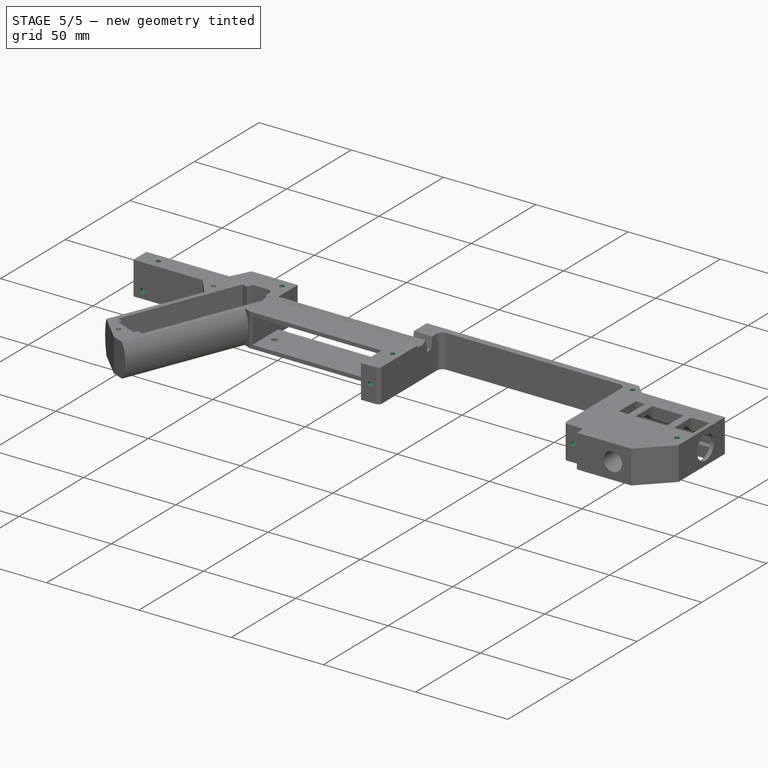
[diagram: stage 5 of 5 — iso view after this stage's code; geometry added in this stage tinted green]
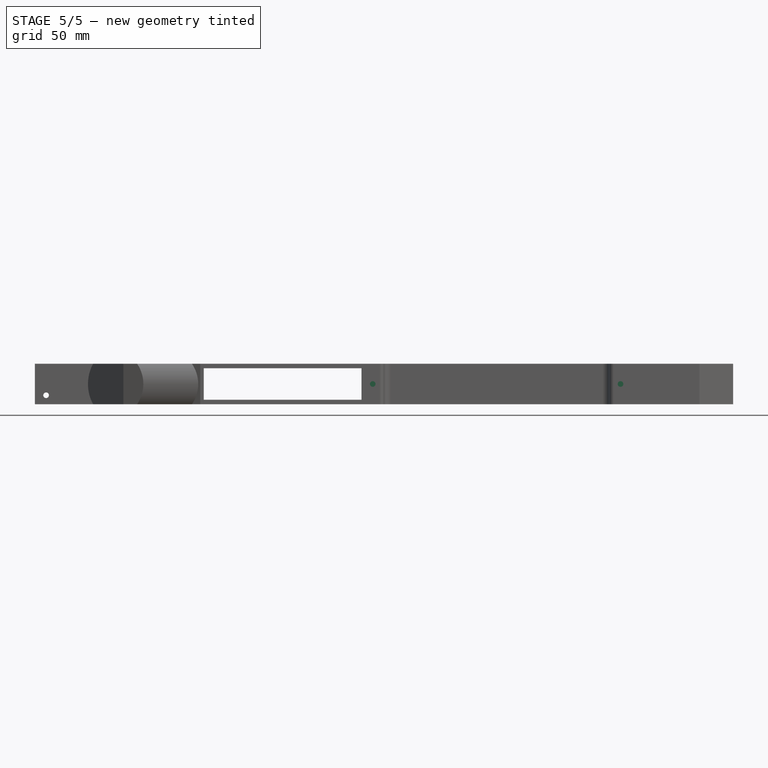
[diagram: stage 5 of 5 — front view after this stage's code; geometry added in this stage tinted green]
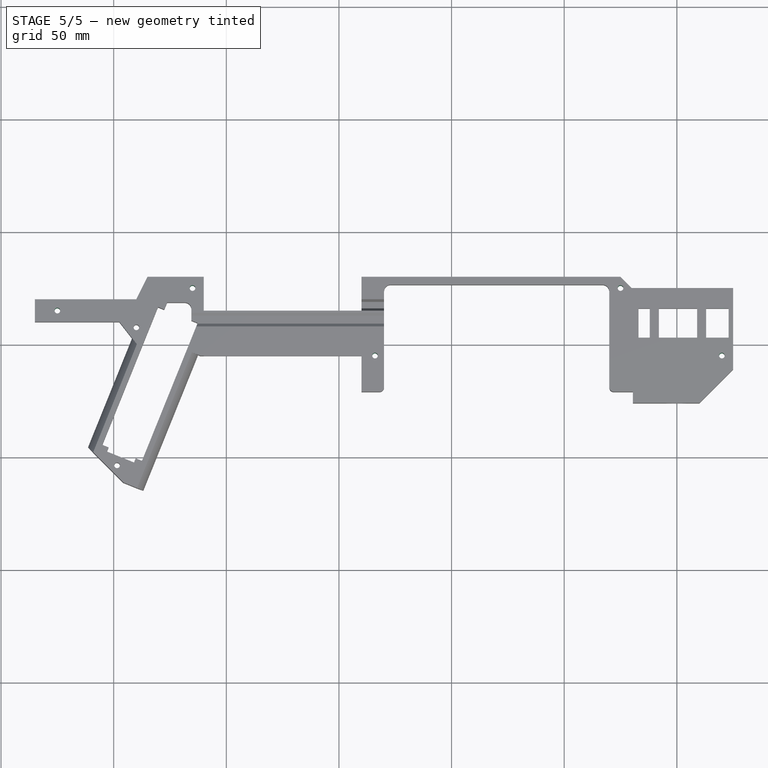
[diagram: stage 5 of 5 — top view after this stage's code; geometry added in this stage tinted green]
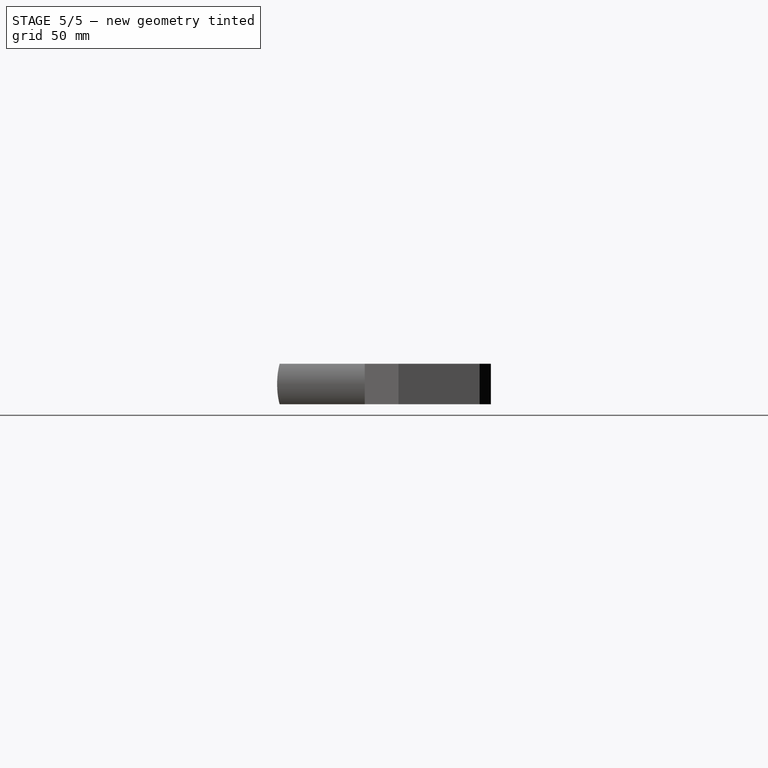
[diagram: stage 5 of 5 — right view after this stage's code; geometry added in this stage tinted green]
FEATURE [PartDesign::Hole] Hole001  label="SidePlateRetainingScrews"
  BaseFeature = -> Pocket013
  CustomThreadClearance = 0
  Depth = 656.003
  DepthType = 1
  Diameter = 2.5
  DrillForDepth = false
  DrillPoint = 1
  DrillPointAngle = 118
  HoleCutCountersinkAngle = 90
  HoleCutCustomValues = false
  HoleCutDepth = 0
  HoleCutDiameter = 6.1
  HoleCutType = 0
  ModelThread = false
  Profile = -> Sketch015
  Refine = true
  Suppressed = false
  Tapered = false
  TaperedAngle = 90
  ThreadClass = 0
  ThreadDepth = 656.003
  ThreadDepthType = 0
  ThreadDirection = 0
  ThreadFit = 0
  ThreadSize = 0
  ThreadType = 0
  Threaded = false
  UseCustomThreadClearance = false
FEATURE [PartDesign::Hole] Hole002  label="FrontSightRetainingScrews"
  BaseFeature = -> Hole001
  CustomThreadClearance = 0
  Depth = 10
  DepthType = 0
  Diameter = 2.5
  DrillForDepth = false
  DrillPoint = 0
  DrillPointAngle = 118
  HoleCutCountersinkAngle = 90
  HoleCutCustomValues = false
  HoleCutDepth = 0
  HoleCutDiameter = 6.1
  HoleCutType = 0
  ModelThread = false
  Profile = -> Sketch016
  Refine = true
  Reversed = true
  Suppressed = false
  Tapered = false
  TaperedAngle = 90
  ThreadClass = 0
  ThreadDepth = 10
  ThreadDepthType = 0
  ThreadDirection = 0
  ThreadFit = 0
  ThreadSize = 0
  ThreadType = 0
  Threaded = false
  UseCustomThreadClearance = false
FEATURE [PartDesign::Hole] Hole003  label="RearSightRetainingScrews"
  BaseFeature = -> Hole002
  CustomThreadClearance = 0
  Depth = 20
  DepthType = 0
  Diameter = 2.5
  DrillForDepth = false
  DrillPoint = 0
  DrillPointAngle = 118
  HoleCutCountersinkAngle = 90
  HoleCutCustomValues = false
  HoleCutDepth = 0
  HoleCutDiameter = 6.1
  HoleCutType = 0
  ModelThread = false
  Profile = -> Sketch018
  Refine = true
  Reversed = true
  Suppressed = false
  Tapered = false
  TaperedAngle = 90
  ThreadClass = 0
  ThreadDepth = 20
  ThreadDepthType = 0
  ThreadDirection = 0
  ThreadFit = 0
  ThreadSize = 0
  ThreadType = 0
  Threaded = false
  UseCustomThreadClearance = false
FEATURE [Sketcher::SketchObject] Sketch021
  ArcFitTolerance = 1e-06
  AttachmentOffset = pos=(0,0,22) rot=(0,0,1;0rad)
  AttachmentSupport = -> [XZ_Plane001]
  FullyConstrained = true
  MakeInternals = false
  MapMode = 5
  Placement = pos=(0,-22,4.9e-15) rot=(1,0,0;1.5708rad)
  sketch-geometry (2):
    g0: Circle CenterX=15 CenterY=0 CenterZ=0 NormalX=0 NormalY=0 NormalZ=1 AngleXU=0 Radius=1.5
    g1: Circle CenterX=125 CenterY=0 CenterZ=0 NormalX=0 NormalY=0 NormalZ=1 AngleXU=0 Radius=1.5
  constraints (6):
    c: PointOnObject(g0,g-1)
    c: PointOnObject(g1,g-1)
    c: DistanceX(g0,g1) = 110
    c: Diameter(g1) = 3
    c: Equal(g1,g0)
    c: DistanceX(g-1,g0) = 15
FEATURE [PartDesign::Hole] Hole004
  BaseFeature = -> Hole003
  CustomThreadClearance = 0
  Depth = 14
  DepthType = 0
  Diameter = 2.5
  DrillForDepth = false
  DrillPoint = 0
  DrillPointAngle = 118
  HoleCutCountersinkAngle = 90
  HoleCutCustomValues = false
  HoleCutDepth = 0
  HoleCutDiameter = 6.1
  HoleCutType = 0
  ModelThread = false
  Profile = -> Sketch021
  Refine = true
  Suppressed = false
  Tapered = false
  TaperedAngle = 90
  ThreadClass = 0
  ThreadDepth = 14
  ThreadDepthType = 0
  ThreadDirection = 0
  ThreadFit = 0
  ThreadSize = 9
  ThreadType = 1
  Threaded = true
  UseCustomThreadClearance = false
FEATURE [Sketcher::SketchObject] Sketch005
  ArcFitTolerance = 1e-06
  AttachmentOffset = pos=(0,0,-9) rot=(0,0,1;0rad)
  AttachmentSupport = -> [XY_Plane004]
  FullyConstrained = true
  MakeInternals = false
  MapMode = 5
  Placement = pos=(0,0,-9) rot=(0,0,1;0rad)
  sketch-geometry (8):
    g0: LineSegment StartX=20 StartY=47 StartZ=0 EndX=20 EndY=41 EndZ=0
    g1: LineSegment StartX=20 StartY=41 StartZ=0 EndX=50 EndY=41 EndZ=0
    g2: LineSegment StartX=50 StartY=41 StartZ=0 EndX=50 EndY=47 EndZ=0
    g3: LineSegment StartX=50 StartY=47 StartZ=0 EndX=20 EndY=47 EndZ=0
    g4: LineSegment StartX=49 StartY=8 StartZ=0 EndX=19 EndY=8 EndZ=0
    g5: LineSegment StartX=19 StartY=8 StartZ=0 EndX=19 EndY=-4 EndZ=0
    g6: LineSegment StartX=19 StartY=-4 StartZ=0 EndX=49 EndY=-4 EndZ=0
    g7: LineSegment StartX=49 StartY=-4 StartZ=0 EndX=49 EndY=8 EndZ=0
  constraints (24):
    c: Coincident(g0,g1)
    c: Coincident(g1,g2)
    c: Coincident(g2,g3)
    c: Coincident(g3,g0)
    c: Vertical(g0)
    c: Vertical(g2)
    c: Horizontal(g1)
    c: Horizontal(g3)
    c: Coincident(g4,g5)
    c: Coincident(g5,g6)
    c: Coincident(g6,g7)
    c: Coincident(g7,g4)
    c: Horizontal(g4)
    c: Horizontal(g6)
    c: Vertical(g5)
    c: Vertical(g7)
    c: DistanceY(g-1,g4) = 8
    c: DistanceX(g-1,g6) = 49
    c: DistanceX(g6,g6) = 30
    c: Distance(g5,g-1) = 4
    c: DistanceY(g-1,g0) = 47
    c: DistanceX(g-1,g0) = 20
    c: DistanceX(g3,g3) = 30
    c: DistanceY(g0,g0) = 6
FEATURE [PartDesign::Pad] Pad003  label="Standoffs"
  BaseFeature = -> Pad002
  Direction = (0,0,1)
  Length = 6
  Length2 = 10
  Profile = -> Sketch005
  ReferenceAxis = -> Sketch005 [N_Axis]
  Refine = true
  Suppressed = false
  Type = 0
FEATURE [Sketcher::SketchObject] Sketch006
  ArcFitTolerance = 1e-06
  AttachmentOffset = pos=(0,0,5) rot=(0,0,1;0rad)
  AttachmentSupport = -> [XZ_Plane004]
  FullyConstrained = true
  MakeInternals = false
  MapMode = 5
  Placement = pos=(0,-5,1.1e-15) rot=(1,0,0;1.5708rad)
  sketch-geometry (12):
    g0: ArcOfCircle CenterX=37 CenterY=0 CenterZ=0 NormalX=0 NormalY=0 NormalZ=1 AngleXU=0 Radius=2 StartAngle=1.5708 EndAngle=4.71239
    g1: ArcOfCircle CenterX=45 CenterY=1e-16 CenterZ=0 NormalX=0 NormalY=0 NormalZ=1 AngleXU=0 Radius=2 StartAngle=4.71239 EndAngle=7.85398
    g2: LineSegment StartX=37 StartY=2 StartZ=0 EndX=45 EndY=2 EndZ=0
    g3: LineSegment StartX=37 StartY=-2 StartZ=0 EndX=45 EndY=-2 EndZ=0
    g4: LineSegment StartX=60.5 StartY=2 StartZ=0 EndX=60.5 EndY=-2 EndZ=0
    g5: LineSegment StartX=60.5 StartY=-2 StartZ=0 EndX=69.5 EndY=-2 EndZ=0
    g6: LineSegment StartX=69.5 StartY=-2 StartZ=0 EndX=69.5 EndY=2 EndZ=0
    g7: LineSegment StartX=69.5 StartY=2 StartZ=0 EndX=60.5 EndY=2 EndZ=0
    g8: GeomPoint X=65 Y=2 Z=0
    g9: GeomPoint X=41 Y=2 Z=0
    g10: Circle CenterX=85 CenterY=0 CenterZ=0 NormalX=0 NormalY=0 NormalZ=1 AngleXU=0 Radius=2.65
    g11: Circle CenterX=95 CenterY=0 CenterZ=0 NormalX=0 NormalY=0 NormalZ=1 AngleXU=0 Radius=2.65
  constraints (29):
    c: Tangent(g0,g2) = 1.5708
    c: Tangent(g0,g3) = -1.5708
    c: Tangent(g1,g2) = 1.5708
    c: Tangent(g1,g3) = -1.5708
    c: Equal(g0,g1)
    c: Horizontal(g3)
    c: PointOnObject(g0,g-1)
    c: Radius(g0) = 2
    c: DistanceX(g2,g2) = 8
    c: Coincident(g4,g5)
    c: Coincident(g5,g6)
    c: Coincident(g6,g7)
    c: Coincident(g7,g4)
    c: Vertical(g6)
    c: Horizontal(g5)
    c: Horizontal(g7)
    c: Symmetric(g4,g4,g-1)
    c: DistanceX(g7,g7) = 9
    c: Distance(g6,g6) = 4
    c: Symmetric(g7,g7,g8)
    c: DistanceX(g-1,g8) = 65
    c: Symmetric(g2,g2,g9)
    c: DistanceX(g-1,g9) = 41
    c: PointOnObject(g10,g-1)
    c: PointOnObject(g11,g-1)
    c: Diameter(g10) = 5.3
    c: Diameter(g11) = 5.3
    c: DistanceX(g10,g11) = 10
    c: DistanceX(g-1,g10) = 85
FEATURE [Sketcher::SketchObject] Sketch007
  ArcFitTolerance = 1e-06
  AttachmentSupport = -> [XY_Plane004]
  FullyConstrained = true
  MakeInternals = false
  MapMode = 5
  sketch-geometry (4):
    g0: LineSegment StartX=53 StartY=-1.5 StartZ=0 EndX=53 EndY=-4 EndZ=0
    g1: LineSegment StartX=53 StartY=-4 StartZ=0 EndX=110 EndY=-4 EndZ=0
    g2: LineSegment StartX=110 StartY=-4 StartZ=0 EndX=110 EndY=-1.5 EndZ=0
    g3: LineSegment StartX=110 StartY=-1.5 StartZ=0 EndX=53 EndY=-1.5 EndZ=0
  constraints (12):
    c: Coincident(g0,g1)
    c: Coincident(g1,g2)
    c: Coincident(g2,g3)
    c: Coincident(g3,g0)
    c: Vertical(g0)
    c: Vertical(g2)
    c: Horizontal(g1)
    c: Horizontal(g3)
    c: DistanceY(g0,g-1) = 4
    c: Distance(g0,g-1) = 1.5
    c: DistanceX(g-1,g0) = 53
    c: DistanceX(g-1,g1) = 110
FEATURE [PartDesign::Pad] Pad004
  BaseFeature = -> Pad003
  Direction = (0,0,1)
  Length = 15
  Length2 = 10
  Midplane = true
  Profile = -> Sketch007
  ReferenceAxis = -> Sketch007 [N_Axis]
  Refine = true
  Suppressed = false
  Type = 0
FEATURE [PartDesign::Pocket] Pocket001  label="PanelCutouts"
  BaseFeature = -> Pad004
  Direction = (0,1,-2e-16)
  Length = 5
  Length2 = 5
  Midplane = true
  Profile = -> Sketch006
  ReferenceAxis = -> Sketch006 [N_Axis]
  Refine = true
  Suppressed = false
  Type = 1
FEATURE [Sketcher::SketchObject] Sketch009
  ArcFitTolerance = 1e-06
  AttachmentOffset = pos=(0,0,-9) rot=(0,0,1;0rad)
  AttachmentSupport = -> [XY_Plane004]
  FullyConstrained = true
  MakeInternals = false
  MapMode = 5
  Placement = pos=(0,0,-9) rot=(0,0,1;0rad)
  sketch-geometry (4):
    g0: LineSegment StartX=53 StartY=-3 StartZ=0 EndX=78 EndY=-3 EndZ=0
    g1: LineSegment StartX=78 StartY=-3 StartZ=0 EndX=78 EndY=12 EndZ=0
    g2: LineSegment StartX=78 StartY=12 StartZ=0 EndX=53 EndY=12 EndZ=0
    g3: LineSegment StartX=53 StartY=12 StartZ=0 EndX=53 EndY=-3 EndZ=0
  constraints (12):
    c: Coincident(g0,g1)
    c: Coincident(g1,g2)
    c: Coincident(g2,g3)
    c: Coincident(g3,g0)
    c: Horizontal(g0)
    c: Horizontal(g2)
    c: Vertical(g1)
    c: Vertical(g3)
    c: DistanceX(g-1,g2) = 53
    c: DistanceX(g2,g2) = 25
    c: DistanceY(g0,g-1) = 3
    c: DistanceY(g-1,g1) = 12
FEATURE [PartDesign::Pad] Pad006
  BaseFeature = -> Pocket001
  Direction = (0,0,1)
  Length = 6
  Length2 = 10
  Profile = -> Sketch009
  ReferenceAxis = -> Sketch009 [N_Axis]
  Refine = true
  Suppressed = false
  Type = 0
FEATURE [App::Link] Link002  label="M3x10"
  LinkPlacement = pos=(74,6,2) rot=(0,0,1;0rad)
  LinkedObject = -> <external ../../ReferenceParts/M3.FCStd>#Part
  Placement = pos=(74,6,2) rot=(0,0,1;0rad)
FEATURE [Sketcher::SketchObject] Sketch013
  ArcFitTolerance = 1e-06
  AttachmentSupport = -> [XY_Plane004]
  FullyConstrained = true
  MakeInternals = false
  MapMode = 5
  sketch-geometry (4):
    g0: Circle CenterX=56 CenterY=6 CenterZ=0 NormalX=0 NormalY=0 NormalZ=1 AngleXU=0 Radius=1.5
    g1: Circle CenterX=74 CenterY=6 CenterZ=0 NormalX=0 NormalY=0 NormalZ=1 AngleXU=0 Radius=1.5
    g2: LineSegment [constr] StartX=56 StartY=6 StartZ=0 EndX=74 EndY=6 EndZ=0
    g3: GeomPoint [constr] X=65 Y=6 Z=0
  constraints (9):
    c: Coincident(g2,g0)
    c: Coincident(g2,g1)
    c: Horizontal(g2)
    c: Symmetric(g2,g2,g3)
    c: DistanceX(g-1,g3) = 65
    c: DistanceX(g2,g2) = 18
    c: Equal(g0,g1)
    c: Diameter(g0) = 3
    c: DistanceY(g-1,g1) = 6
FEATURE [PartDesign::Hole] Hole002
  BaseFeature = -> Pad006
  CustomThreadClearance = 0
  Depth = 25
  DepthType = 0
  Diameter = 2.5
  DrillForDepth = false
  DrillPoint = 1
  DrillPointAngle = 118
  HoleCutCountersinkAngle = 90
  HoleCutCustomValues = false
  HoleCutDepth = 0
  HoleCutDiameter = 6.1
  HoleCutType = 0
  ModelThread = false
  Profile = -> Sketch013
  Refine = true
  Suppressed = false
  Tapered = false
  TaperedAngle = 90
  ThreadClass = 0
  ThreadDepth = 25
  ThreadDepthType = 0
  ThreadDirection = 0
  ThreadFit = 0
  ThreadSize = 9
  ThreadType = 1
  Threaded = true
  UseCustomThreadClearance = false
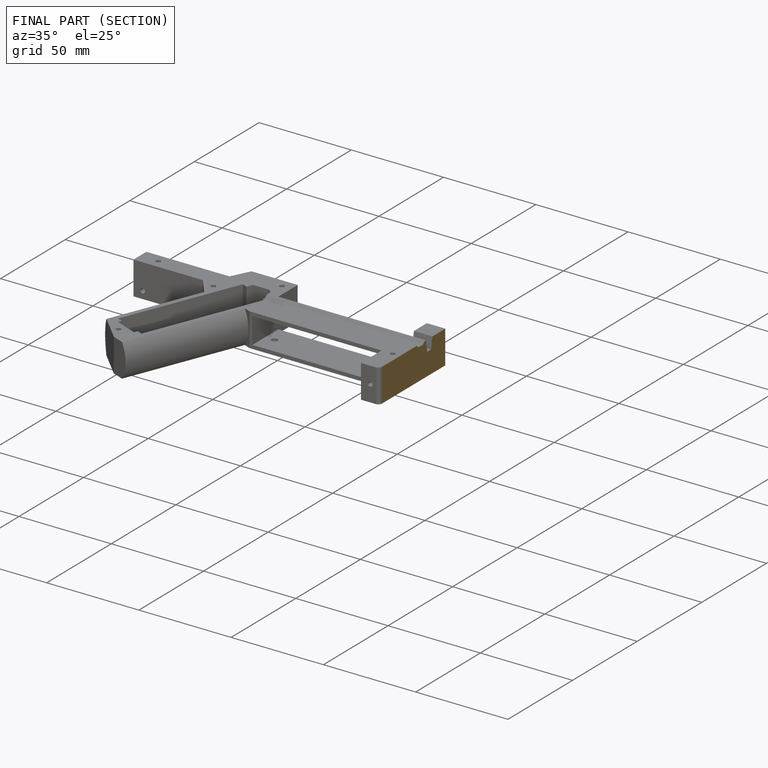
[diagram: finished part — half-section view (interior)]
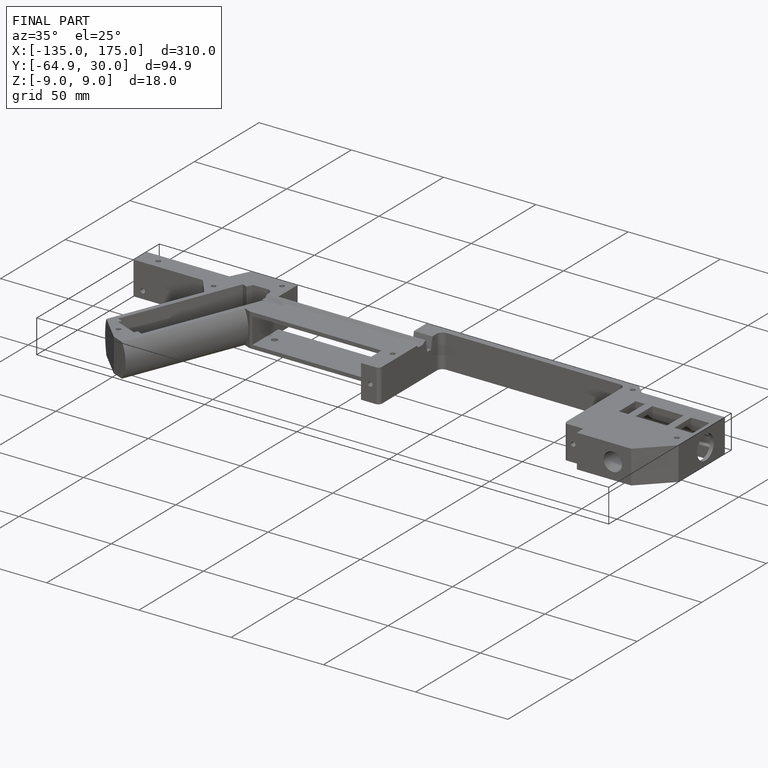
[diagram: finished part — iso view with bounding-box wireframe]
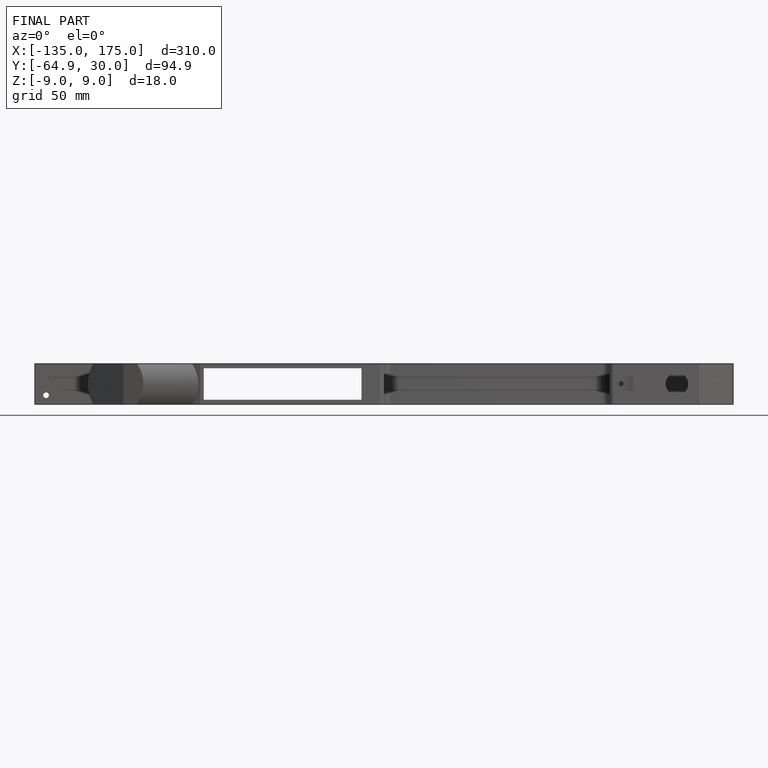
[diagram: finished part — front view with bounding-box wireframe]
